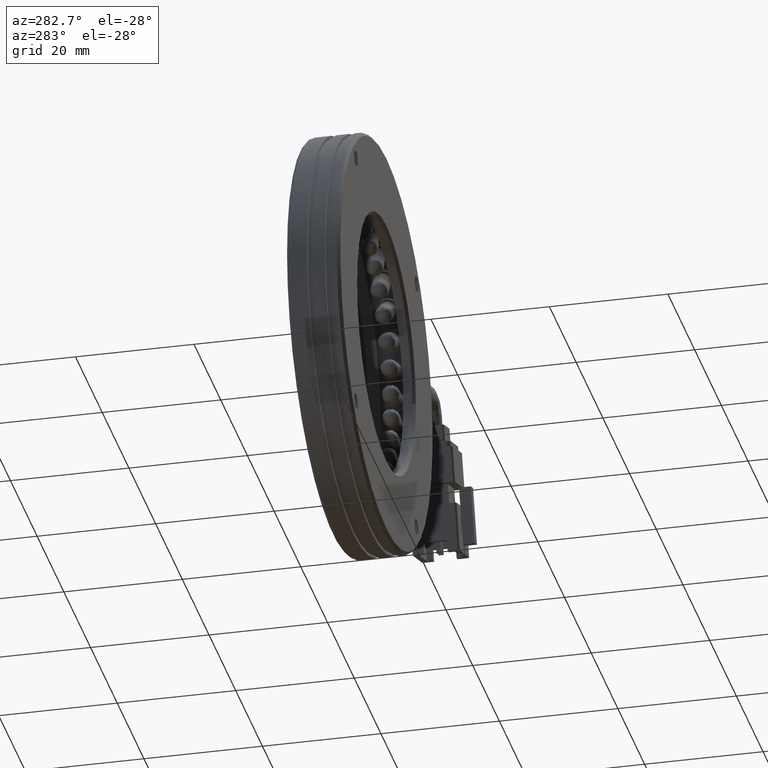
[diagram: clean part render]
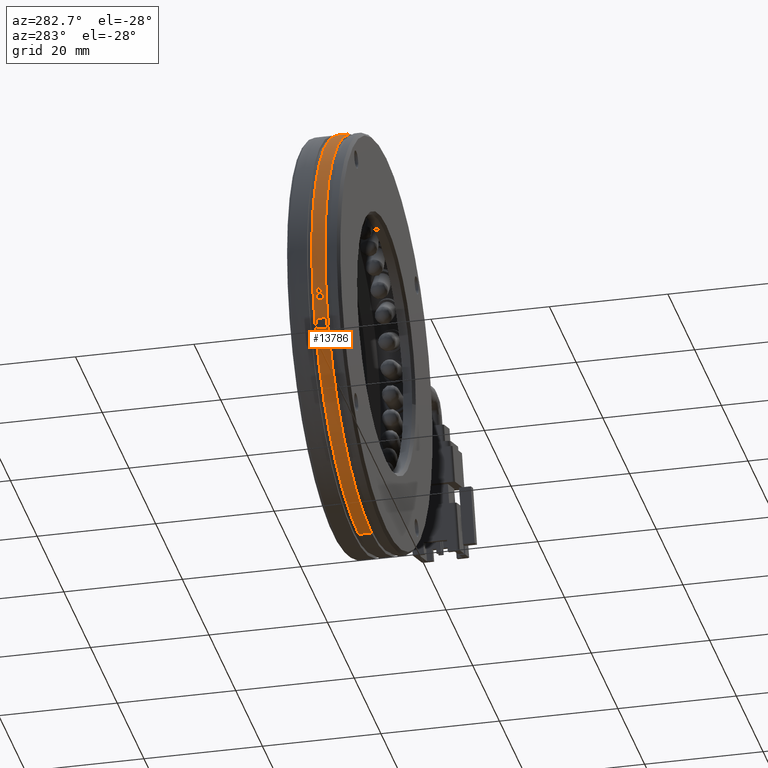
[diagram: same view with one face highlighted and labeled with its STEP entity id]
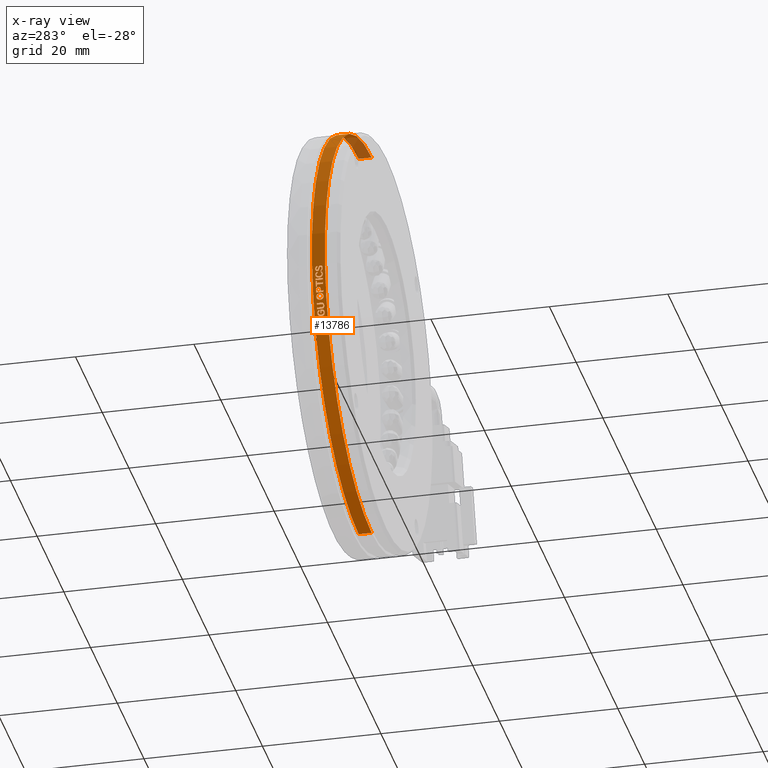
[diagram: x-ray of the same camera — body ghosted, the highlighted face saturated]
A machine part, auxiliary view. The second image highlights one B-rep face of the part: STEP entity #13786.
The next image is the same camera in x-ray: the body ghosted, the highlighted face saturated — about 5% of this face is hidden behind the body in this view.
In plain terms, the highlighted cylindrical surface (partial cylindrical patch) has radius 35 mm, axis along (-0, -1, -0).
Its self-contained STEP definition (entity closure, byte-faithful):
#142 = CARTESIAN_POINT ( 'NONE',  ( -40.39723486211963200, 8.439419805546799900, -4.663328215685306900 ) ) ;
#197 = VECTOR ( 'NONE', #20840, 1000.000000000000000 ) ;
#217 = CIRCLE ( 'NONE', #2184, 34.99999999999999300 ) ;
#252 = B_SPLINE_CURVE_WITH_KNOTS ( 'NONE', 3,
 ( #5702, #8786, #30602, #11857, #33721, #14976, #36816, #18114, #39926, #21215 ),
 .UNSPECIFIED., .F., .F.,
 ( 4, 2, 2, 2, 4 ),
 ( 2.867545654888875000E-017, 0.0002174403538692195000, 0.0004348807077384103100, 0.0006523210616076010500, 0.0008697614154767919000 ),
 .UNSPECIFIED. ) ;
#253 = CARTESIAN_POINT ( 'NONE',  ( -40.53529176790697600, 8.431466855415269600, -3.486049796518110500 ) ) ;
#273 = EDGE_CURVE ( 'NONE', #11872, #32885, #14133, .T. ) ;
#299 = VECTOR ( 'NONE', #39300, 1000.000000000000000 ) ;
#410 = CARTESIAN_POINT ( 'NONE',  ( -40.50665843673757400, 8.155241945682604400, -3.760764559234163400 ) ) ;
#555 = CARTESIAN_POINT ( 'NONE',  ( -38.85192625618644500, 7.473551317965132900, -11.25017765051628700 ) ) ;
#557 = CARTESIAN_POINT ( 'NONE',  ( -38.58840364347593500, 8.711829927737943200, -11.99857520911581000 ) ) ;
#617 = CARTESIAN_POINT ( 'NONE',  ( -40.32951506316123900, 7.515653376187645000, -5.142043744119059000 ) ) ;
#623 = CARTESIAN_POINT ( 'NONE',  ( -39.27207348800719400, 7.362210503221170700, -9.926716905154590300 ) ) ;
#700 = EDGE_CURVE ( 'NONE', #27360, #5844, #13007, .T. ) ;
#739 = CARTESIAN_POINT ( 'NONE',  ( -39.02928525543719500, 7.275475782910735500, -10.71354901682362900 ) ) ;
#741 = VERTEX_POINT ( 'NONE', #36999 ) ;
#742 = DIRECTION ( 'NONE',  ( 1.717128912325588700E-015, 1.000000000000000000, -6.800725122794042400E-015 ) ) ;
#750 = DIRECTION ( 'NONE',  ( 0.0000000000000000000, -5.898059818321145700E-015, -1.000000000000000000 ) ) ;
#954 = CARTESIAN_POINT ( 'NONE',  ( -39.27059936408246400, 7.200350038104902600, -9.931699640039335400 ) ) ;
#969 = EDGE_CURVE ( 'NONE', #5844, #741, #7006, .T. ) ;
#973 = EDGE_CURVE ( 'NONE', #37691, #30644, #23479, .T. ) ;
#1003 = CARTESIAN_POINT ( 'NONE',  ( -5.709292144904565300, 8.740899625888642900, 0.0000000000000000000 ) ) ;
#1048 = CARTESIAN_POINT ( 'NONE',  ( -39.95628834277789600, 7.641280270663054700, -7.221028418642939400 ) ) ;
#1105 = ORIENTED_EDGE ( 'NONE', *, *, #38166, .T. ) ;
#1155 = EDGE_CURVE ( 'NONE', #24310, #5081, #3605, .T. ) ;
#1200 = DIRECTION ( 'NONE',  ( -0.0000000000000000000, -1.000000000000000000, -0.0000000000000000000 ) ) ;
#1222 = CIRCLE ( 'NONE', #33924, 34.99999999999999300 ) ;
#1379 = EDGE_CURVE ( 'NONE', #31795, #6650, #11703, .T. ) ;
#1470 = CARTESIAN_POINT ( 'NONE',  ( -38.58892541590628200, 6.980985665217229300, -11.99714559153918000 ) ) ;
#1530 = CARTESIAN_POINT ( 'NONE',  ( -40.17456373751140600, 7.222675619500247300, -6.094674236400825500 ) ) ;
#1666 = CARTESIAN_POINT ( 'NONE',  ( -40.39863021250401700, 7.200350038104937200, -4.652937183306445200 ) ) ;
#1680 = CIRCLE ( 'NONE', #26649, 34.99999999999999300 ) ;
#1811 = CARTESIAN_POINT ( 'NONE',  ( -40.52638276884088200, 7.725001200895628800, -3.573541728398598000 ) ) ;
#1839 = CARTESIAN_POINT ( 'NONE',  ( -40.52961579091536500, 7.356629107872377600, -3.542370271246749100 ) ) ;
#1842 = CARTESIAN_POINT ( 'NONE',  ( -39.99953580705859900, 8.390012020451413500, -7.012982834793845700 ) ) ;
#1854 = VERTEX_POINT ( 'NONE', #1530 ) ;
#1861 = CARTESIAN_POINT ( 'NONE',  ( -39.80464579682593000, 8.119002150315049300, -7.906159537187290800 ) ) ;
#1879 = EDGE_CURVE ( 'NONE', #11168, #4517, #18408, .T. ) ;
#1922 = CARTESIAN_POINT ( 'NONE',  ( -40.53830979342927100, 7.915220361393205700, -3.457007879260136600 ) ) ;
#1974 = VECTOR ( 'NONE', #8485, 1000.000000000000000 ) ;
#2001 = CARTESIAN_POINT ( 'NONE',  ( -39.68912917594610000, 7.200350038104912400, -8.388723105685269100 ) ) ;
#2024 = VERTEX_POINT ( 'NONE', #38263 ) ;
#2059 = CARTESIAN_POINT ( 'NONE',  ( -38.74213095999537200, 7.979963971136093000, -11.56857872402954100 ) ) ;
#2079 = VECTOR ( 'NONE', #30349, 1000.000000000000000 ) ;
#2126 = VERTEX_POINT ( 'NONE', #6886 ) ;
#2127 = ORIENTED_EDGE ( 'NONE', *, *, #12707, .T. ) ;
#2160 = CARTESIAN_POINT ( 'NONE',  ( -39.57494810971164900, 7.439542963045764300, -8.838544005212281000 ) ) ;
#2176 = EDGE_CURVE ( 'NONE', #4517, #17576, #22337, .T. ) ;
#2184 = AXIS2_PLACEMENT_3D ( 'NONE', #25480, #6895, #28634 ) ;
#2187 = CARTESIAN_POINT ( 'NONE',  ( -38.82142874935018300, 7.921099948651758800, -11.33959538470946000 ) ) ;
#2214 = CARTESIAN_POINT ( 'NONE',  ( -5.709292144904565300, 8.422675619500234100, 0.0000000000000000000 ) ) ;
#2445 = CARTESIAN_POINT ( 'NONE',  ( -40.50633539089841400, 8.085411719179077700, -3.763746121645845700 ) ) ;
#2454 = CIRCLE ( 'NONE', #12429, 34.99999999999999300 ) ;
#2532 = EDGE_CURVE ( 'NONE', #12562, #19373, #30163, .T. ) ;
#2568 = VERTEX_POINT ( 'NONE', #39370 ) ;
#2578 = CARTESIAN_POINT ( 'NONE',  ( -40.54266984432840800, 8.165547170203044700, -3.411323961585782400 ) ) ;
#2705 = VERTEX_POINT ( 'NONE', #28662 ) ;
#2741 = CARTESIAN_POINT ( 'NONE',  ( -39.61509251605758000, 8.363603585705698500, -8.683434711592136400 ) ) ;
#2756 = VERTEX_POINT ( 'NONE', #25642 ) ;
#2857 = VECTOR ( 'NONE', #40315, 1000.000000000000000 ) ;
#2883 = CARTESIAN_POINT ( 'NONE',  ( -40.37654649462209700, 8.419737279391098300, -4.815234610611336800 ) ) ;
#2885 = EDGE_CURVE ( 'NONE', #10758, #11839, #16721, .T. ) ;
#2953 = LINE ( 'NONE', #11831, #34068 ) ;
#3000 = CARTESIAN_POINT ( 'NONE',  ( -39.31469554837985900, 7.389938712935268100, -9.781523189364362400 ) ) ;
#3112 = VERTEX_POINT ( 'NONE', #6073 ) ;
#3225 = CARTESIAN_POINT ( 'NONE',  ( -38.07998741557423700, 6.955602534680213700, -13.30939057495131000 ) ) ;
#3234 = ORIENTED_EDGE ( 'NONE', *, *, #5616, .T. ) ;
#3262 = CARTESIAN_POINT ( 'NONE',  ( -40.41255655515828200, 8.432226185035320400, -4.548252076466474700 ) ) ;
#3290 = CARTESIAN_POINT ( 'NONE',  ( -39.34359537937439200, -49.82318178258231700, -9.681613808231128700 ) ) ;
#3360 = CARTESIAN_POINT ( 'NONE',  ( -40.55049553052098300, 8.379288013979959300, -3.330532701057778300 ) ) ;
#3464 = CARTESIAN_POINT ( 'NONE',  ( -5.709292144904565300, 7.914768642756052400, 0.0000000000000000000 ) ) ;
#3533 = CARTESIAN_POINT ( 'NONE',  ( -40.50653738225442200, 8.110117479965365900, -3.761877708237267600 ) ) ;
#3550 = B_SPLINE_CURVE_WITH_KNOTS ( 'NONE', 3,
 ( #7797, #29556, #23370, #4830, #26537, #7929, #29683, #10987, #32835, #14095 ),
 .UNSPECIFIED., .F., .F.,
 ( 4, 2, 2, 2, 4 ),
 ( 0.0000000000000000000, 0.0001657305266161024800, 0.0003314610532322049600, 0.0004971915798483074100, 0.0006629221064644099100 ),
 .UNSPECIFIED. ) ;
#3563 = ORIENTED_EDGE ( 'NONE', *, *, #32008, .T. ) ;
#3605 = LINE ( 'NONE', #24549, #19978 ) ;
#3668 = CARTESIAN_POINT ( 'NONE',  ( -38.89248758863624300, 7.380694400632055600, -11.13003078734089400 ) ) ;
#3670 = CARTESIAN_POINT ( 'NONE',  ( -38.62383296447599400, 8.628233802523464400, -11.90100818972652300 ) ) ;
#3711 = ORIENTED_EDGE ( 'NONE', *, *, #8914, .T. ) ;
#3719 = CARTESIAN_POINT ( 'NONE',  ( -39.07117212631721500, 7.421032130401370000, -10.58231084180430800 ) ) ;
#3740 = EDGE_CURVE ( 'NONE', #10638, #12574, #15749, .T. ) ;
#3741 = CARTESIAN_POINT ( 'NONE',  ( -40.32176977797807600, 7.742102706474577500, -5.193881389633446600 ) ) ;
#3763 = FACE_BOUND ( 'NONE', #32916, .T. ) ;
#3770 = CARTESIAN_POINT ( 'NONE',  ( -40.50467462264423800, 7.389678675521230000, -3.779833531160679400 ) ) ;
#3773 = CARTESIAN_POINT ( 'NONE',  ( -38.98712138907237800, 8.407877450413048200, -10.84384488724455900 ) ) ;
#3796 = EDGE_CURVE ( 'NONE', #11839, #24476, #23537, .T. ) ;
#3817 = VERTEX_POINT ( 'NONE', #1811 ) ;
#3854 = CARTESIAN_POINT ( 'NONE',  ( -38.87337055633222600, 7.215763662919441000, -11.18702653370144900 ) ) ;
#3856 = CARTESIAN_POINT ( 'NONE',  ( -38.95554166414018500, 7.200350038104892800, -10.94061511975378300 ) ) ;
#3873 = CARTESIAN_POINT ( 'NONE',  ( -5.709292144904565300, 7.222675619500254400, 0.0000000000000000000 ) ) ;
#3937 = CARTESIAN_POINT ( 'NONE',  ( -5.709292144904565300, 7.747326782290925500, 0.0000000000000000000 ) ) ;
#3963 = DIRECTION ( 'NONE',  ( -0.0000000000000000000, -1.000000000000000000, -0.0000000000000000000 ) ) ;
#3965 = EDGE_LOOP ( 'NONE', ( #6307, #16010, #34101, #35276, #34595, #26492, #19967, #40081 ) ) ;
#4011 = DIRECTION ( 'NONE',  ( 1.493922758805898600E-015, 1.000000000000000000, -5.916712463693376000E-015 ) ) ;
#4025 = CARTESIAN_POINT ( 'NONE',  ( -5.709292144904565300, 6.951255465749324200, 0.0000000000000000000 ) ) ;
#4031 = DIRECTION ( 'NONE',  ( 0.0000000000000000000, 1.000000000000000000, 0.0000000000000000000 ) ) ;
#4051 = CARTESIAN_POINT ( 'NONE',  ( -40.03813142602209800, 7.977316565985457700, -6.821348518083844700 ) ) ;
#4103 = CARTESIAN_POINT ( 'NONE',  ( -39.19116559749901500, 7.241640923058168900, -10.19650719777262000 ) ) ;
#4107 = DIRECTION ( 'NONE',  ( -3.470918447232477800E-015, -1.000000000000000000, 1.374664541131868600E-014 ) ) ;
#4341 = B_SPLINE_CURVE_WITH_KNOTS ( 'NONE', 3,
 ( #12013, #8954, #15145, #36971, #18268, #40097, #21383, #2883, #24562, #5992 ),
 .UNSPECIFIED., .F., .F.,
 ( 4, 2, 2, 2, 4 ),
 ( 0.0000000000000000000, 0.0002269707158079890600, 0.0004539414316159781200, 0.0006809121474239672300, 0.0009078828632319562300 ),
 .UNSPECIFIED. ) ;
#4387 = EDGE_CURVE ( 'NONE', #24517, #25892, #24913, .T. ) ;
#4451 = CARTESIAN_POINT ( 'NONE',  ( -39.90603829501233000, -49.82318178258230300, -7.455370731565895200 ) ) ;
#4469 = CARTESIAN_POINT ( 'NONE',  ( -38.64148229074337600, 7.233284651996410000, -11.85204000154897300 ) ) ;
#4517 = VERTEX_POINT ( 'NONE', #39512 ) ;
#4548 = CARTESIAN_POINT ( 'NONE',  ( -40.39932456966155200, 8.266396549732789400, -4.647757563525561700 ) ) ;
#4603 = CARTESIAN_POINT ( 'NONE',  ( -38.54441143241581400, 6.951255465749302000, -12.11845359925738700 ) ) ;
#4672 = CARTESIAN_POINT ( 'NONE',  ( -40.50790360480068100, 7.208746556212954500, -3.750153935671223700 ) ) ;
#4702 = EDGE_CURVE ( 'NONE', #12562, #15447, #34644, .T. ) ;
#4706 = CARTESIAN_POINT ( 'NONE',  ( -40.40330095043401600, 8.266396549732792900, -4.618078567569925900 ) ) ;
#4812 = CARTESIAN_POINT ( 'NONE',  ( -40.40724007774034000, 8.261804106370899300, -4.588373281642451400 ) ) ;
#4824 = CARTESIAN_POINT ( 'NONE',  ( -40.54775614871338300, 7.567005895077182100, -3.358783389162881800 ) ) ;
#4830 = CARTESIAN_POINT ( 'NONE',  ( -40.56685186871253300, 7.343572252354805500, -3.154530986789815500 ) ) ;
#4845 = CARTESIAN_POINT ( 'NONE',  ( -40.41442574578961500, 8.240049483102108500, -4.533702886845627100 ) ) ;
#4942 = CARTESIAN_POINT ( 'NONE',  ( -40.41765857223748500, 8.222574024657944800, -4.508847656390699400 ) ) ;
#4947 = CARTESIAN_POINT ( 'NONE',  ( -40.32125991055812600, 7.819884921825819300, -5.197276920595964400 ) ) ;
#4956 = CARTESIAN_POINT ( 'NONE',  ( -40.54482800603794600, 7.638491446836354700, -3.389040281601700700 ) ) ;
#4963 = CARTESIAN_POINT ( 'NONE',  ( -38.64148229074336900, 7.277541098519413300, -11.85204000154898000 ) ) ;
#4967 = CARTESIAN_POINT ( 'NONE',  ( -40.02534041575920300, 8.292867158760364200, -6.885521334730223800 ) ) ;
#4988 = CARTESIAN_POINT ( 'NONE',  ( -39.81728214877578900, 7.892439817392059400, -7.851435611295894300 ) ) ;
#5020 = DIRECTION ( 'NONE',  ( -0.0000000000000000000, -1.000000000000000000, -0.0000000000000000000 ) ) ;
#5024 = CARTESIAN_POINT ( 'NONE',  ( -40.42986843329651900, 8.043140735779310500, -4.413794535538989400 ) ) ;
#5027 = CARTESIAN_POINT ( 'NONE',  ( -40.41747967230236300, 7.357941789606277500, -4.510990520821576600 ) ) ;
#5081 = VERTEX_POINT ( 'NONE', #19107 ) ;
#5144 = CIRCLE ( 'NONE', #26919, 34.99999999999999300 ) ;
#5167 = CARTESIAN_POINT ( 'NONE',  ( -40.42815536833497000, 8.100870402503609600, -4.427270152087465300 ) ) ;
#5191 = CARTESIAN_POINT ( 'NONE',  ( -38.76750754569328400, 8.200646507901360800, -11.49595500778165700 ) ) ;
#5208 = CARTESIAN_POINT ( 'NONE',  ( -38.90062003595176800, 7.914768642756036400, -11.10566309722169700 ) ) ;
#5218 = EDGE_LOOP ( 'NONE', ( #13951, #8938, #31503, #8876, #31571, #28716, #32695, #20274, #7452, #6252, #19960, #19168, #24881, #15372 ) ) ;
#5232 = B_SPLINE_CURVE_WITH_KNOTS ( 'NONE', 3,
 ( #34641, #12786, #19019, #557, #22181, #3670, #25338, #6761, #28499, #9856 ),
 .UNSPECIFIED., .F., .F.,
 ( 4, 2, 2, 2, 4 ),
 ( 0.0000000000000000000, 0.0001309404312721280000, 0.0002618808625442560000, 0.0003928212938163840000, 0.0005237617250885119900 ),
 .UNSPECIFIED. ) ;
#5236 = CARTESIAN_POINT ( 'NONE',  ( -40.42542306954605600, 8.157511798361406700, -4.448806873016264000 ) ) ;
#5271 = CARTESIAN_POINT ( 'NONE',  ( -39.55485892232459800, 7.658766965045298700, -8.915048916606013000 ) ) ;
#5308 = EDGE_CURVE ( 'NONE', #37589, #26321, #12795, .T. ) ;
#5313 = CARTESIAN_POINT ( 'NONE',  ( -40.52422693043394700, 8.439419805546807000, -3.594484090844743300 ) ) ;
#5325 = DIRECTION ( 'NONE',  ( 0.0000000000000000000, -6.938893903907230000E-015, -1.000000000000000000 ) ) ;
#5335 = CIRCLE ( 'NONE', #10115, 34.99999999999999300 ) ;
#5348 = VECTOR ( 'NONE', #37851, 1000.000000000000000 ) ;
#5352 = CARTESIAN_POINT ( 'NONE',  ( -5.709292144904565300, 8.422675619500219900, 0.0000000000000000000 ) ) ;
#5367 = CARTESIAN_POINT ( 'NONE',  ( -40.51378829440803700, 8.438027493296168300, -3.695589123808198400 ) ) ;
#5381 = CARTESIAN_POINT ( 'NONE',  ( -39.19875312196099800, -49.82318178258232400, -10.17133243317775600 ) ) ;
#5447 = CARTESIAN_POINT ( 'NONE',  ( -40.50247945919910800, 8.423739182569601500, -3.800172156765631900 ) ) ;
#5451 = CARTESIAN_POINT ( 'NONE',  ( -40.29920628825089300, -49.82318178258228900, -5.342081949570753900 ) ) ;
#5499 = CARTESIAN_POINT ( 'NONE',  ( -40.48836139321367300, 8.340766457993339600, -3.926593969139954100 ) ) ;
#5544 = EDGE_CURVE ( 'NONE', #33599, #13139, #15667, .T. ) ;
#5616 = EDGE_CURVE ( 'NONE', #2126, #30855, #37880, .T. ) ;
#5635 = CARTESIAN_POINT ( 'NONE',  ( -40.48439905091037600, 8.302053589977159500, -3.961368469579573700 ) ) ;
#5656 = B_SPLINE_CURVE_WITH_KNOTS ( 'NONE', 3,
 ( #18586, #37299, #21723, #3773, #25453, #6867, #28606, #9951 ),
 .UNSPECIFIED., .F., .F.,
 ( 4, 2, 2, 4 ),
 ( 0.0000000000000000000, 0.0001654224964580917100, 0.0003308449929161834200, 0.0006616899858323762600 ),
 .UNSPECIFIED. ) ;
#5692 = FACE_OUTER_BOUND ( 'NONE', #36633, .T. ) ;
#5702 = CARTESIAN_POINT ( 'NONE',  ( -39.41190144243923800, 7.741745386942083600, -9.441087148084673000 ) ) ;
#5737 = CARTESIAN_POINT ( 'NONE',  ( -39.85305510295727100, 8.422675619500239500, -7.694377886763031200 ) ) ;
#5811 = CARTESIAN_POINT ( 'NONE',  ( -40.47791941122564900, 8.110117479965365900, -4.017780234860235400 ) ) ;
#5840 = CARTESIAN_POINT ( 'NONE',  ( -39.67014270638468800, 8.436083765246879200, -8.465630774869783400 ) ) ;
#5844 = VERTEX_POINT ( 'NONE', #19933 ) ;
#5893 = CARTESIAN_POINT ( 'NONE',  ( -40.47791941122564900, 8.110117479965365900, -4.017780234860235400 ) ) ;
#5922 = B_SPLINE_CURVE_WITH_KNOTS ( 'NONE', 3,
 ( #32523, #21260, #27590, #8983, #30776, #12037, #33901, #15169, #36989, #18282 ),
 .UNSPECIFIED., .F., .F.,
 ( 4, 2, 2, 2, 4 ),
 ( 0.0000000000000000000, 0.0001639508761768252900, 0.0003279017523536505900, 0.0004918526285304759100, 0.0006558035047073011800 ),
 .UNSPECIFIED. ) ;
#5923 = VERTEX_POINT ( 'NONE', #23659 ) ;
#5938 = ORIENTED_EDGE ( 'NONE', *, *, #35011, .T. ) ;
#5954 = VERTEX_POINT ( 'NONE', #33260 ) ;
#5992 = CARTESIAN_POINT ( 'NONE',  ( -40.39723486211963200, 8.439419805546799900, -4.663328215685306900 ) ) ;
#6032 = CARTESIAN_POINT ( 'NONE',  ( -40.47820313024873000, 8.160864566583645900, -4.015325018201899400 ) ) ;
#6043 = CARTESIAN_POINT ( 'NONE',  ( -38.95418414168441500, 8.258607560705014400, -10.94436405347058300 ) ) ;
#6073 = CARTESIAN_POINT ( 'NONE',  ( -38.92374827998977300, 7.200350038104891900, -11.03629936393990000 ) ) ;
#6105 = CARTESIAN_POINT ( 'NONE',  ( -39.33623799906056500, 7.477897251754949800, -9.707163120419693300 ) ) ;
#6171 = CARTESIAN_POINT ( 'NONE',  ( -40.47930657884519000, 8.210079598183654100, -4.005820357863277600 ) ) ;
#6252 = ORIENTED_EDGE ( 'NONE', *, *, #34202, .T. ) ;
#6307 = ORIENTED_EDGE ( 'NONE', *, *, #21714, .T. ) ;
#6322 = CARTESIAN_POINT ( 'NONE',  ( -38.03202334669745700, 7.001512059884143800, -13.42542577771772900 ) ) ;
#6350 = CARTESIAN_POINT ( 'NONE',  ( -40.43371579231779100, 8.376161693293385100, -4.383668734466713300 ) ) ;
#6461 = B_SPLINE_CURVE_WITH_KNOTS ( 'NONE', 3,
 ( #954, #19440, #38168, #4103, #25770, #7180, #28925, #10250, #32088, #13347 ),
 .UNSPECIFIED., .F., .F.,
 ( 4, 2, 2, 2, 4 ),
 ( 0.0000000000000000000, 0.0002096298023318950400, 0.0004192596046637900700, 0.0006288894069956850800, 0.0008385192093275801400 ),
 .UNSPECIFIED. ) ;
#6462 = CARTESIAN_POINT ( 'NONE',  ( -40.56190549431917700, 8.269175613935072300, -3.208735270689636400 ) ) ;
#6532 = EDGE_CURVE ( 'NONE', #11424, #12833, #21461, .T. ) ;
#6567 = DIRECTION ( 'NONE',  ( 0.0000000000000000000, -5.947623346206197100E-015, -1.000000000000000000 ) ) ;
#6590 = CIRCLE ( 'NONE', #12656, 34.99999999999999300 ) ;
#6637 = CARTESIAN_POINT ( 'NONE',  ( -38.82021610022735600, 7.819884921825778400, -11.34313514090487000 ) ) ;
#6650 = VERTEX_POINT ( 'NONE', #5208 ) ;
#6651 = B_SPLINE_CURVE_WITH_KNOTS ( 'NONE', 3,
 ( #14096, #32837, #20329, #1842, #23509, #4967, #26668, #8066, #29829, #11120 ),
 .UNSPECIFIED., .F., .F.,
 ( 4, 2, 2, 2, 4 ),
 ( 0.0000000000000000000, 0.0001612189044592692800, 0.0003224378089185385600, 0.0004836567133778078400, 0.0006448756178370771200 ),
 .UNSPECIFIED. ) ;
#6702 = CARTESIAN_POINT ( 'NONE',  ( -40.38829758862613100, 7.204500430868729500, -4.729970650276753100 ) ) ;
#6705 = CARTESIAN_POINT ( 'NONE',  ( -39.19875312196083400, 7.669187247407189800, -10.17133243317831800 ) ) ;
#6719 = AXIS2_PLACEMENT_3D ( 'NONE', #26133, #25609, #19934 ) ;
#6758 = CARTESIAN_POINT ( 'NONE',  ( -38.92538948739746000, 7.362210503221152900, -11.03135881630345900 ) ) ;
#6761 = CARTESIAN_POINT ( 'NONE',  ( -38.63991015536225900, 8.503801807668187600, -11.85641433654923400 ) ) ;
#6848 = VECTOR ( 'NONE', #1200, 1000.000000000000000 ) ;
#6862 = CARTESIAN_POINT ( 'NONE',  ( -40.52368434593645900, 7.356629107872377600, -3.599735500384624800 ) ) ;
#6867 = CARTESIAN_POINT ( 'NONE',  ( -39.04581288166566100, 8.293256463206304800, -10.66231234355703700 ) ) ;
#6877 = VERTEX_POINT ( 'NONE', #5737 ) ;
#6886 = CARTESIAN_POINT ( 'NONE',  ( -40.39723486211963200, 8.439419805546799900, -4.663328215685306900 ) ) ;
#6895 = DIRECTION ( 'NONE',  ( 0.0000000000000000000, -1.000000000000000000, -0.0000000000000000000 ) ) ;
#6901 = CARTESIAN_POINT ( 'NONE',  ( -5.709292144904565300, 6.760202915404272900, 0.0000000000000000000 ) ) ;
#6905 = B_SPLINE_CURVE_WITH_KNOTS ( 'NONE', 3,
 ( #14323, #33058, #2059, #23725, #5191, #26897, #8282, #30068, #11340, #33186 ),
 .UNSPECIFIED., .F., .F.,
 ( 4, 2, 2, 2, 4 ),
 ( 0.0000000000000000000, 0.0002307194362509225400, 0.0004614388725018450700, 0.0006921583087527676100, 0.0009228777450036901500 ),
 .UNSPECIFIED. ) ;
#6934 = ORIENTED_EDGE ( 'NONE', *, *, #13511, .T. ) ;
#6951 = CARTESIAN_POINT ( 'NONE',  ( -38.80271836194779000, 7.318125340669702400, -11.39420224193192700 ) ) ;
#6979 = DIRECTION ( 'NONE',  ( 0.0000000000000000000, 0.0000000000000000000, 1.000000000000000000 ) ) ;
#7006 = CIRCLE ( 'NONE', #9251, 34.99999999999999300 ) ;
#7038 = DIRECTION ( 'NONE',  ( 0.0000000000000000000, 1.008617792460800900E-014, 1.000000000000000000 ) ) ;
#7124 = DIRECTION ( 'NONE',  ( 0.0000000000000000000, 5.922841582263671400E-015, 1.000000000000000000 ) ) ;
#7171 = CARTESIAN_POINT ( 'NONE',  ( -38.64148229074336900, 7.277541098519413300, -11.85204000154898000 ) ) ;
#7180 = CARTESIAN_POINT ( 'NONE',  ( -39.14431553867966300, 7.383153390591583200, -10.34898258146066600 ) ) ;
#7323 = EDGE_CURVE ( 'NONE', #23299, #33599, #5335, .T. ) ;
#7452 = ORIENTED_EDGE ( 'NONE', *, *, #3740, .T. ) ;
#7502 = CARTESIAN_POINT ( 'NONE',  ( -39.95628834277789600, 7.641280270663054700, -7.221028418642939400 ) ) ;
#7632 = EDGE_CURVE ( 'NONE', #23512, #36058, #27618, .T. ) ;
#7797 = CARTESIAN_POINT ( 'NONE',  ( -40.57159029504670400, 7.557559340430498400, -3.101639516545390500 ) ) ;
#7820 = DIRECTION ( 'NONE',  ( 0.0000000000000000000, -1.000000000000000000, -0.0000000000000000000 ) ) ;
#7853 = ORIENTED_EDGE ( 'NONE', *, *, #20726, .T. ) ;
#7929 = CARTESIAN_POINT ( 'NONE',  ( -40.55444964358938600, 7.241605815432524900, -3.288966588245130700 ) ) ;
#8006 = CARTESIAN_POINT ( 'NONE',  ( -5.709292144904565300, 8.422675619500260800, 0.0000000000000000000 ) ) ;
#8042 = AXIS2_PLACEMENT_3D ( 'NONE', #19205, #742, #22370 ) ;
#8060 = CARTESIAN_POINT ( 'NONE',  ( -40.53668835988683100, 7.701537086198607400, -3.471933231849497300 ) ) ;
#8066 = CARTESIAN_POINT ( 'NONE',  ( -40.03705161495266700, 8.140099605349883300, -6.826798934873108800 ) ) ;
#8072 = CARTESIAN_POINT ( 'NONE',  ( -39.27059936408246400, 7.200350038104902600, -9.931699640039335400 ) ) ;
#8106 = CARTESIAN_POINT ( 'NONE',  ( -40.36264144216514900, 7.599841453528107100, -4.913809292064947900 ) ) ;
#8161 = CARTESIAN_POINT ( 'NONE',  ( -40.50653738225442200, 8.110117479965365900, -3.761877708237267600 ) ) ;
#8282 = CARTESIAN_POINT ( 'NONE',  ( -38.82248348599115700, 8.365263761825456600, -11.33674629702095200 ) ) ;
#8299 = EDGE_CURVE ( 'NONE', #36223, #11424, #3550, .T. ) ;
#8314 = VERTEX_POINT ( 'NONE', #29827 ) ;
#8340 = ORIENTED_EDGE ( 'NONE', *, *, #16754, .T. ) ;
#8348 = VERTEX_POINT ( 'NONE', #23767 ) ;
#8375 = CARTESIAN_POINT ( 'NONE',  ( -39.55129533759086500, 7.814303526476964000, -8.928539628976865900 ) ) ;
#8464 = DIRECTION ( 'NONE',  ( 0.0000000000000000000, 0.0000000000000000000, -1.000000000000000000 ) ) ;
#8480 = VERTEX_POINT ( 'NONE', #30653 ) ;
#8485 = DIRECTION ( 'NONE',  ( -0.0000000000000000000, -1.000000000000000000, -0.0000000000000000000 ) ) ;
#8497 = B_SPLINE_CURVE_WITH_KNOTS ( 'NONE', 3,
 ( #40219, #9082, #21510, #3000, #24674, #6105, #27827, #9202, #31023, #12275 ),
 .UNSPECIFIED., .F., .F.,
 ( 4, 2, 2, 2, 4 ),
 ( 0.0000000000000000000, 0.0001159476062002444100, 0.0002318952124004888300, 0.0003478428186007332100, 0.0004637904248009776500 ),
 .UNSPECIFIED. ) ;
#8515 = ORIENTED_EDGE ( 'NONE', *, *, #1379, .T. ) ;
#8533 = CARTESIAN_POINT ( 'NONE',  ( -40.37389685762609300, 8.195998025642843700, -4.833941566406670300 ) ) ;
#8575 = VERTEX_POINT ( 'NONE', #15569 ) ;
#8667 = EDGE_CURVE ( 'NONE', #19214, #19466, #29999, .T. ) ;
#8746 = B_SPLINE_CURVE_WITH_KNOTS ( 'NONE', 3,
 ( #11327, #26742, #36282, #17563, #39388, #21231, #2741, #24410, #5840, #27563 ),
 .UNSPECIFIED., .F., .F.,
 ( 4, 2, 2, 2, 4 ),
 ( 0.0000000000000000000, 0.0002323634499704908500, 0.0004647268999409817000, 0.0006970903499114725500, 0.0009294537998819634100 ),
 .UNSPECIFIED. ) ;
#8749 = B_SPLINE_CURVE_WITH_KNOTS ( 'NONE', 3,
 ( #33152, #11304, #17543, #39368, #20651, #2160, #23824, #5271, #26991, #8375 ),
 .UNSPECIFIED., .F., .F.,
 ( 4, 2, 2, 2, 4 ),
 ( 0.0000000000000000000, 0.0002307864841859867600, 0.0004615729683719735300, 0.0006923594525579603200, 0.0009231459367439470600 ),
 .UNSPECIFIED. ) ;
#8786 = CARTESIAN_POINT ( 'NONE',  ( -39.41280069777948800, 7.668752499682034900, -9.437877003859155100 ) ) ;
#8876 = ORIENTED_EDGE ( 'NONE', *, *, #19213, .T. ) ;
#8914 = EDGE_CURVE ( 'NONE', #8314, #23512, #6590, .T. ) ;
#8926 = CARTESIAN_POINT ( 'NONE',  ( -40.54623750038824400, 8.065466317174685400, -3.374498229225254300 ) ) ;
#8938 = ORIENTED_EDGE ( 'NONE', *, *, #8299, .T. ) ;
#8954 = CARTESIAN_POINT ( 'NONE',  ( -40.32176732840903100, 7.896557920236519500, -5.193897702869572100 ) ) ;
#8983 = CARTESIAN_POINT ( 'NONE',  ( -40.50415660005546700, 7.779498754954892600, -3.784193629749861700 ) ) ;
#9082 = CARTESIAN_POINT ( 'NONE',  ( -39.28312182066952800, 7.360562549649730000, -9.889361878624193000 ) ) ;
#9139 = CARTESIAN_POINT ( 'NONE',  ( -38.91879959256319700, 8.271977945081571800, -11.05118161482769800 ) ) ;
#9143 = EDGE_CURVE ( 'NONE', #22783, #24310, #6461, .T. ) ;
#9202 = CARTESIAN_POINT ( 'NONE',  ( -39.34351962650099200, 7.591435000567694900, -9.681879432709637400 ) ) ;
#9250 = VERTEX_POINT ( 'NONE', #10781 ) ;
#9251 = AXIS2_PLACEMENT_3D ( 'NONE', #28973, #29049, #28997 ) ;
#9278 = CARTESIAN_POINT ( 'NONE',  ( -38.92538948739746000, 7.362210503221152900, -11.03135881630345900 ) ) ;
#9303 = CARTESIAN_POINT ( 'NONE',  ( -38.64148229074350400, -49.82318178258233100, -11.85204000154861200 ) ) ;
#9396 = EDGE_CURVE ( 'NONE', #32885, #8575, #8749, .T. ) ;
#9410 = CARTESIAN_POINT ( 'NONE',  ( -37.99907053574004600, 7.103584130537372600, -13.50445773701614600 ) ) ;
#9444 = CARTESIAN_POINT ( 'NONE',  ( -40.44973167136441100, 8.258070460879587000, -4.254718912903016700 ) ) ;
#9463 = B_SPLINE_CURVE_WITH_KNOTS ( 'NONE', 3,
 ( #36016, #1922, #29928, #11202, #33055, #14319, #36162, #17441 ),
 .UNSPECIFIED., .F., .F.,
 ( 4, 2, 2, 4 ),
 ( 0.0000000000000000000, 0.0003257335998721412500, 0.0004886003998082110100, 0.0006514671997442807700 ),
 .UNSPECIFIED. ) ;
#9545 = CARTESIAN_POINT ( 'NONE',  ( -40.56792547127482600, 8.119658643845561100, -3.142574103923013500 ) ) ;
#9572 = CARTESIAN_POINT ( 'NONE',  ( -40.52014063538042900, 8.266396549732798200, -3.634124534166857300 ) ) ;
#9681 = EDGE_LOOP ( 'NONE', ( #13485, #20691, #3234, #33951, #26187, #19410, #24738, #33157, #33509, #39024 ) ) ;
#9792 = CARTESIAN_POINT ( 'NONE',  ( -39.19956218354241200, 7.593185600686675600, -10.16867133117876400 ) ) ;
#9856 = CARTESIAN_POINT ( 'NONE',  ( -38.64148229074350400, 8.414617254833320500, -11.85204000154861200 ) ) ;
#9866 = VERTEX_POINT ( 'NONE', #14478 ) ;
#9879 = CARTESIAN_POINT ( 'NONE',  ( -40.29920628825089300, 8.422675619500253700, -5.342081949570753900 ) ) ;
#9882 = CARTESIAN_POINT ( 'NONE',  ( -39.12517057512438600, 7.730582596244414800, -10.41052682320971100 ) ) ;
#9893 = VERTEX_POINT ( 'NONE', #39427 ) ;
#9951 = CARTESIAN_POINT ( 'NONE',  ( -39.07514672741475400, 8.087791898569992800, -10.56975628757748500 ) ) ;
#9966 = AXIS2_PLACEMENT_3D ( 'NONE', #5352, #27062, #8464 ) ;
#9989 = DIRECTION ( 'NONE',  ( 0.0000000000000000000, 0.0000000000000000000, -1.000000000000000000 ) ) ;
#10026 = CARTESIAN_POINT ( 'NONE',  ( -38.75693532307644100, 7.512014558911683800, -11.52622120729645200 ) ) ;
#10052 = ORIENTED_EDGE ( 'NONE', *, *, #13310, .T. ) ;
#10074 = AXIS2_PLACEMENT_3D ( 'NONE', #4025, #25702, #7124 ) ;
#10115 = AXIS2_PLACEMENT_3D ( 'NONE', #17159, #38980, #20255 ) ;
#10213 = CARTESIAN_POINT ( 'NONE',  ( -40.03736072203696500, 7.923429256256850000, -6.825241624387523100 ) ) ;
#10250 = CARTESIAN_POINT ( 'NONE',  ( -39.12577076006169100, 7.588645659309857000, -10.40861299272877900 ) ) ;
#10287 = CARTESIAN_POINT ( 'NONE',  ( -40.47489217857849300, 7.423605852058430300, -4.043890985005838900 ) ) ;
#10320 = CARTESIAN_POINT ( 'NONE',  ( -40.52368434593645900, 7.356629107872377600, -3.599735500384624800 ) ) ;
#10512 = CARTESIAN_POINT ( 'NONE',  ( -5.709292144904560800, -49.82318178258231000, 34.99999999999999300 ) ) ;
#10638 = VERTEX_POINT ( 'NONE', #5811 ) ;
#10758 = VERTEX_POINT ( 'NONE', #21895 ) ;
#10770 = AXIS2_PLACEMENT_3D ( 'NONE', #31366, #31259, #31226 ) ;
#10781 = CARTESIAN_POINT ( 'NONE',  ( -40.45697096470810500, 7.630117479965371700, -4.195094353620149300 ) ) ;
#10898 = EDGE_CURVE ( 'NONE', #39028, #9893, #21792, .T. ) ;
#10962 = FACE_BOUND ( 'NONE', #3965, .T. ) ;
#10963 = CARTESIAN_POINT ( 'NONE',  ( -40.56877179554821600, 8.065466317174681900, -3.133157909579497700 ) ) ;
#10987 = CARTESIAN_POINT ( 'NONE',  ( -40.53868788079729100, 7.203952927624691900, -3.451987048636852200 ) ) ;
#11013 = CARTESIAN_POINT ( 'NONE',  ( -39.70784408515407200, 8.434397294743654100, -8.312915434252305500 ) ) ;
#11058 = DIRECTION ( 'NONE',  ( 0.0000000000000000000, 0.0000000000000000000, -1.000000000000000000 ) ) ;
#11110 = CARTESIAN_POINT ( 'NONE',  ( -40.52638276884088200, 7.725001200895628800, -3.573541728398598000 ) ) ;
#11120 = CARTESIAN_POINT ( 'NONE',  ( -40.03785616239567000, 8.031977945081628400, -6.822733506228666500 ) ) ;
#11157 = CARTESIAN_POINT ( 'NONE',  ( -40.37356231429648500, 7.460378094994862200, -4.836244474339715700 ) ) ;
#11168 = VERTEX_POINT ( 'NONE', #7502 ) ;
#11202 = CARTESIAN_POINT ( 'NONE',  ( -40.56133783458570000, 7.797041341670899700, -3.215118167856846600 ) ) ;
#11304 = CARTESIAN_POINT ( 'NONE',  ( -39.67052613917384500, 7.205244149363532600, -8.464077620292501400 ) ) ;
#11327 = CARTESIAN_POINT ( 'NONE',  ( -39.55129533759086500, 7.814303526476964000, -8.928539628976865900 ) ) ;
#11329 = CARTESIAN_POINT ( 'NONE',  ( -38.91879959256319700, 8.271977945081571800, -11.05118161482769800 ) ) ;
#11340 = CARTESIAN_POINT ( 'NONE',  ( -38.89403620348128500, 8.435338422186063700, -11.12559718257487900 ) ) ;
#11424 = VERTEX_POINT ( 'NONE', #27445 ) ;
#11462 = EDGE_CURVE ( 'NONE', #26378, #2126, #4341, .T. ) ;
#11521 = EDGE_CURVE ( 'NONE', #17785, #8314, #22668, .T. ) ;
#11576 = CARTESIAN_POINT ( 'NONE',  ( -40.36311312112147900, 8.061564447589775600, -4.910517334215262200 ) ) ;
#11631 = EDGE_CURVE ( 'NONE', #17576, #22954, #1680, .T. ) ;
#11703 = LINE ( 'NONE', #18381, #27334 ) ;
#11718 = CARTESIAN_POINT ( 'NONE',  ( -40.50901151699680700, 8.016370683659625100, -3.738936593817477200 ) ) ;
#11831 = CARTESIAN_POINT ( 'NONE',  ( -40.06103514893978700, -49.82318178258231000, -6.705054256657208000 ) ) ;
#11839 = VERTEX_POINT ( 'NONE', #20655 ) ;
#11857 = CARTESIAN_POINT ( 'NONE',  ( -39.40376367187165800, 7.453320110576133800, -9.470101608405558500 ) ) ;
#11872 = VERTEX_POINT ( 'NONE', #23829 ) ;
#11911 = FACE_BOUND ( 'NONE', #9681, .T. ) ;
#11964 = CARTESIAN_POINT ( 'NONE',  ( -40.06103514893978700, 8.422675619500246600, -6.705054256657208000 ) ) ;
#11981 = CARTESIAN_POINT ( 'NONE',  ( -40.53025917087692400, 8.264488490772569300, -3.535975862640079000 ) ) ;
#12013 = CARTESIAN_POINT ( 'NONE',  ( -40.32125991055812600, 7.819884921825819300, -5.197276920595964400 ) ) ;
#12037 = CARTESIAN_POINT ( 'NONE',  ( -40.48829545299329900, 7.860048198561840700, -3.927220194551620700 ) ) ;
#12190 = VERTEX_POINT ( 'NONE', #37976 ) ;
#12275 = CARTESIAN_POINT ( 'NONE',  ( -39.34359537937439200, 7.669187247407199600, -9.681613808231128700 ) ) ;
#12287 = CARTESIAN_POINT ( 'NONE',  ( -37.98725723676815800, -49.82318178258234600, -13.53266306121728500 ) ) ;
#12373 = ORIENTED_EDGE ( 'NONE', *, *, #39994, .T. ) ;
#12374 = CARTESIAN_POINT ( 'NONE',  ( -39.07672688670965800, 7.914768642756032000, -10.56476685740760700 ) ) ;
#12429 = AXIS2_PLACEMENT_3D ( 'NONE', #3464, #25131, #6567 ) ;
#12478 = CARTESIAN_POINT ( 'NONE',  ( -37.98725723676798800, 7.232952337373597600, -13.53266306121765800 ) ) ;
#12484 = CARTESIAN_POINT ( 'NONE',  ( -40.52986277264578500, 8.437876427525861100, -3.539897264444131300 ) ) ;
#12505 = CARTESIAN_POINT ( 'NONE',  ( -40.45864239882633500, 8.100388977702991200, -4.181244878212571500 ) ) ;
#12562 = VERTEX_POINT ( 'NONE', #33918 ) ;
#12574 = VERTEX_POINT ( 'NONE', #30786 ) ;
#12656 = AXIS2_PLACEMENT_3D ( 'NONE', #36965, #18264, #40095 ) ;
#12707 = EDGE_CURVE ( 'NONE', #6650, #21822, #2454, .T. ) ;
#12786 = CARTESIAN_POINT ( 'NONE',  ( -38.54433968150495800, 8.740899625888619800, -12.11864725176642900 ) ) ;
#12795 = B_SPLINE_CURVE_WITH_KNOTS ( 'NONE', 3,
 ( #5024, #5167, #5236, #4942, #4845, #4812, #4706, #4548 ),
 .UNSPECIFIED., .F., .F.,
 ( 4, 2, 2, 4 ),
 ( 0.0000000000000000000, 0.0001754701520313476900, 0.0002632052280470216100, 0.0003509403040626955400 ),
 .UNSPECIFIED. ) ;
#12801 = ORIENTED_EDGE ( 'NONE', *, *, #4387, .T. ) ;
#12833 = VERTEX_POINT ( 'NONE', #10287 ) ;
#12867 = CARTESIAN_POINT ( 'NONE',  ( -39.20813479704034400, 7.482108126762488700, -10.14041591830397900 ) ) ;
#12909 = CARTESIAN_POINT ( 'NONE',  ( -39.95628834277789600, 8.422675619500243000, -7.221028418642943900 ) ) ;
#12986 = VERTEX_POINT ( 'NONE', #35754 ) ;
#12993 = VERTEX_POINT ( 'NONE', #1666 ) ;
#12997 = EDGE_CURVE ( 'NONE', #21822, #18944, #35932, .T. ) ;
#13007 = LINE ( 'NONE', #37623, #28665 ) ;
#13056 = EDGE_CURVE ( 'NONE', #21323, #36223, #9463, .T. ) ;
#13097 = CARTESIAN_POINT ( 'NONE',  ( -38.73897972220602500, 7.745321287335825000, -11.57755355022191400 ) ) ;
#13108 = VERTEX_POINT ( 'NONE', #20553 ) ;
#13139 = VERTEX_POINT ( 'NONE', #33327 ) ;
#13191 = CARTESIAN_POINT ( 'NONE',  ( -40.13005702861367800, 7.222675619500247300, -6.341210043865213000 ) ) ;
#13213 = EDGE_CURVE ( 'NONE', #15447, #21247, #25173, .T. ) ;
#13296 = CARTESIAN_POINT ( 'NONE',  ( -40.02627385416310100, 7.768092206614902300, -6.880868770337049700 ) ) ;
#13310 = EDGE_CURVE ( 'NONE', #38848, #17785, #8497, .T. ) ;
#13347 = CARTESIAN_POINT ( 'NONE',  ( -39.12517057512438600, 7.730582596244414800, -10.41052682320971100 ) ) ;
#13467 = CARTESIAN_POINT ( 'NONE',  ( -38.11332303925215100, 8.740899625888612700, -13.22795455836488900 ) ) ;
#13485 = ORIENTED_EDGE ( 'NONE', *, *, #23106, .T. ) ;
#13511 = EDGE_CURVE ( 'NONE', #21247, #19373, #33483, .T. ) ;
#13614 = CARTESIAN_POINT ( 'NONE',  ( -38.09502467116696800, 8.740899625888618000, -13.27277939368863700 ) ) ;
#13625 = CARTESIAN_POINT ( 'NONE',  ( -5.709292144904565300, 8.043140735779310500, 0.0000000000000000000 ) ) ;
#13786 = ADVANCED_FACE ( 'NONE', ( #5692, #20152, #37771, #29519, #11911, #3763, #35822, #27536, #19184, #10962 ), #15313, .T. ) ;
#13799 = ORIENTED_EDGE ( 'NONE', *, *, #2532, .F. ) ;
#13882 = CARTESIAN_POINT ( 'NONE',  ( -38.07661727134790700, 8.731792157798407700, -13.31758749612678200 ) ) ;
#13912 = CARTESIAN_POINT ( 'NONE',  ( -39.07672688670965800, -49.82318178258231000, -10.56476685740760700 ) ) ;
#13927 = CARTESIAN_POINT ( 'NONE',  ( -40.48135364959436800, 7.348449150275094200, -3.988341288488044700 ) ) ;
#13951 = ORIENTED_EDGE ( 'NONE', *, *, #13056, .T. ) ;
#13995 = VECTOR ( 'NONE', #3963, 1000.000000000000000 ) ;
#14007 = CARTESIAN_POINT ( 'NONE',  ( -38.04358735047899400, 8.691234896120848300, -13.39758284604538100 ) ) ;
#14095 = CARTESIAN_POINT ( 'NONE',  ( -40.52745269589782900, 7.200350038104947900, -3.563101997593711700 ) ) ;
#14096 = CARTESIAN_POINT ( 'NONE',  ( -39.95628834277789600, 8.422675619500243000, -7.221028418642943900 ) ) ;
#14133 = B_SPLINE_CURVE_WITH_KNOTS ( 'NONE', 3,
 ( #25419, #24867, #24330, #24053, #23917, #22122, #21990, #21706, #21436, #21290 ),
 .UNSPECIFIED., .F., .F.,
 ( 4, 2, 2, 2, 4 ),
 ( 0.0000000000000000000, 0.0002295613014807425900, 0.0004591226029614851700, 0.0006886839044422277600, 0.0009182452059229703400 ),
 .UNSPECIFIED. ) ;
#14147 = EDGE_CURVE ( 'NONE', #30855, #37589, #16697, .T. ) ;
#14151 = VECTOR ( 'NONE', #35496, 1000.000000000000000 ) ;
#14153 = CARTESIAN_POINT ( 'NONE',  ( -38.02903153273748400, 8.659584294229977900, -13.43262008700770200 ) ) ;
#14228 = CARTESIAN_POINT ( 'NONE',  ( -40.54280727806384700, 7.409304544312266900, -3.409813867932107700 ) ) ;
#14238 = EDGE_CURVE ( 'NONE', #17959, #9250, #37619, .T. ) ;
#14239 = B_SPLINE_CURVE_WITH_KNOTS ( 'NONE', 3,
 ( #9278, #27911, #34211, #15469, #37298, #18585 ),
 .UNSPECIFIED., .F., .F.,
 ( 4, 2, 4 ),
 ( 0.0000000000000000000, 0.0001705426068515316800, 0.0003410852137030633600 ),
 .UNSPECIFIED. ) ;
#14275 = CARTESIAN_POINT ( 'NONE',  ( -40.39212249108789600, 7.377078083945570500, -4.701440933182223800 ) ) ;
#14295 = CARTESIAN_POINT ( 'NONE',  ( -40.44498284188893000, 7.491258514816630400, -4.293757001972010400 ) ) ;
#14319 = CARTESIAN_POINT ( 'NONE',  ( -40.57036441822204900, 7.666607211403246000, -3.115523629871859600 ) ) ;
#14323 = CARTESIAN_POINT ( 'NONE',  ( -38.73806386218188200, 7.825466317174605300, -11.58016575218082900 ) ) ;
#14353 = CARTESIAN_POINT ( 'NONE',  ( -40.17456373751147000, 8.255233759035112600, -6.094674236400435600 ) ) ;
#14423 = CARTESIAN_POINT ( 'NONE',  ( -37.98725723676800900, 8.349366651708725900, -13.53266306121766300 ) ) ;
#14453 = CARTESIAN_POINT ( 'NONE',  ( -39.07514672741475400, 8.087791898569992800, -10.56975628757748500 ) ) ;
#14478 = CARTESIAN_POINT ( 'NONE',  ( -37.98725723676815800, 7.277541098519406200, -13.53266306121728500 ) ) ;
#14576 = CARTESIAN_POINT ( 'NONE',  ( -40.39248641665467000, 8.264424269558633200, -4.698796316363246500 ) ) ;
#14717 = CARTESIAN_POINT ( 'NONE',  ( -40.35896808852523800, 7.910801860684991900, -4.939638056258899300 ) ) ;
#14780 = B_SPLINE_CURVE_WITH_KNOTS ( 'NONE', 3,
 ( #34830, #37916, #3854, #25534, #6951, #28687, #10026, #31866, #13097, #34947 ),
 .UNSPECIFIED., .F., .F.,
 ( 4, 2, 2, 2, 4 ),
 ( 0.0000000000000000000, 0.0002382280200220014700, 0.0004764560400440029400, 0.0007146840600660044100, 0.0009529120800880058800 ),
 .UNSPECIFIED. ) ;
#14850 = CARTESIAN_POINT ( 'NONE',  ( -40.51741338937720400, 7.956999073205248700, -3.660104173912237100 ) ) ;
#14921 = CARTESIAN_POINT ( 'NONE',  ( -39.41190144243923800, 8.422675619500227000, -9.441087148084673000 ) ) ;
#14976 = CARTESIAN_POINT ( 'NONE',  ( -39.36957160098667400, 7.275160774851216600, -9.591031925942845100 ) ) ;
#15085 = CARTESIAN_POINT ( 'NONE',  ( -37.98725723676801600, 8.445809192850616000, -13.53266306121766700 ) ) ;
#15133 = LINE ( 'NONE', #32404, #14151 ) ;
#15145 = CARTESIAN_POINT ( 'NONE',  ( -40.32320041169474900, 7.971884762606924500, -5.184377081520178600 ) ) ;
#15169 = CARTESIAN_POINT ( 'NONE',  ( -40.47789667945412600, 7.998376959436629200, -4.018054486082689000 ) ) ;
#15172 = EDGE_CURVE ( 'NONE', #39355, #28963, #38985, .T. ) ;
#15229 = CARTESIAN_POINT ( 'NONE',  ( -37.99566515418590700, 8.543534753677940700, -13.51271489756357100 ) ) ;
#15303 = CARTESIAN_POINT ( 'NONE',  ( -40.46010998240894500, 8.043140735779310500, -4.169011828309823600 ) ) ;
#15313 = CYLINDRICAL_SURFACE ( 'NONE', #28701, 34.99999999999999300 ) ;
#15318 = B_SPLINE_CURVE_WITH_KNOTS ( 'NONE', 3,
 ( #17692, #2445, #30468, #11718, #33586, #14850, #36682, #17970 ),
 .UNSPECIFIED., .F., .F.,
 ( 4, 2, 2, 4 ),
 ( 0.0000000000000000000, 7.356106992090457900E-005, 0.0001471221398418091600, 0.0002942442796836240600 ),
 .UNSPECIFIED. ) ;
#15322 = AXIS2_PLACEMENT_3D ( 'NONE', #8006, #29758, #11058 ) ;
#15372 = ORIENTED_EDGE ( 'NONE', *, *, #35363, .T. ) ;
#15444 = AXIS2_PLACEMENT_3D ( 'NONE', #28840, #28866, #28782 ) ;
#15447 = VERTEX_POINT ( 'NONE', #22607 ) ;
#15469 = CARTESIAN_POINT ( 'NONE',  ( -38.99093664184780300, 7.438988927493652700, -10.83209744575821500 ) ) ;
#15569 = CARTESIAN_POINT ( 'NONE',  ( -39.55129533759086500, 7.814303526476964000, -8.928539628976865900 ) ) ;
#15667 = B_SPLINE_CURVE_WITH_KNOTS ( 'NONE', 3,
 ( #8926, #27540, #2578, #30724, #11981, #33845 ),
 .UNSPECIFIED., .F., .F.,
 ( 4, 2, 4 ),
 ( 0.0000000000000000000, 0.0001571084569936048600, 0.0003142169139872097300 ),
 .UNSPECIFIED. ) ;
#15749 = B_SPLINE_CURVE_WITH_KNOTS ( 'NONE', 3,
 ( #5893, #6032, #6171, #5635, #5499, #5447, #5367, #5313 ),
 .UNSPECIFIED., .F., .F.,
 ( 4, 2, 2, 4 ),
 ( 0.0000000000000000000, 0.0001499525500138736800, 0.0002999051000277473700, 0.0005998102000554945100 ),
 .UNSPECIFIED. ) ;
#15791 = CARTESIAN_POINT ( 'NONE',  ( -40.51514803059384200, 8.259676748573618000, -3.681524417296842900 ) ) ;
#15919 = CARTESIAN_POINT ( 'NONE',  ( -38.82251785292515200, 7.715908794711608300, -11.33641923429391000 ) ) ;
#15997 = CARTESIAN_POINT ( 'NONE',  ( -40.35779602570710300, 7.277215972932817000, -4.948374904593439500 ) ) ;
#16003 = CARTESIAN_POINT ( 'NONE',  ( -39.22995528470801900, 7.395820149750735900, -10.06808778096659100 ) ) ;
#16010 = ORIENTED_EDGE ( 'NONE', *, *, #8667, .T. ) ;
#16023 = ORIENTED_EDGE ( 'NONE', *, *, #35892, .T. ) ;
#16065 = LINE ( 'NONE', #12287, #39961 ) ;
#16296 = B_SPLINE_CURVE_WITH_KNOTS ( 'NONE', 3,
 ( #20321, #4824, #23504, #4956, #26662, #8060, #29823, #11110 ),
 .UNSPECIFIED., .F., .F.,
 ( 4, 2, 2, 4 ),
 ( 0.0000000000000000000, 7.768946172601158600E-005, 0.0001553789234520231700, 0.0003107578469040457500 ),
 .UNSPECIFIED. ) ;
#16365 = CARTESIAN_POINT ( 'NONE',  ( -40.26084559011923100, -49.82318178258228900, -5.584814636357588600 ) ) ;
#16432 = CARTESIAN_POINT ( 'NONE',  ( -40.00031996058128700, 7.669630792349080300, -7.009154498256447300 ) ) ;
#16540 = B_SPLINE_CURVE_WITH_KNOTS ( 'NONE', 3,
 ( #11329, #30056, #36284, #17565, #39391, #20678, #2187, #23847 ),
 .UNSPECIFIED., .F., .F.,
 ( 4, 2, 2, 4 ),
 ( 0.0000000000000000000, 0.0001510910873256221600, 0.0003021821746512443300, 0.0006043643493024785700 ),
 .UNSPECIFIED. ) ;
#16550 = CARTESIAN_POINT ( 'NONE',  ( -40.40624769913624400, 7.362210503221201700, -4.595788862390398000 ) ) ;
#16697 = CIRCLE ( 'NONE', #22924, 34.99999999999999300 ) ;
#16721 = B_SPLINE_CURVE_WITH_KNOTS ( 'NONE', 3,
 ( #14423, #15085, #15229, #14153, #14007, #13882, #13614, #13467 ),
 .UNSPECIFIED., .F., .F.,
 ( 4, 2, 2, 4 ),
 ( 0.0000000000000000000, 0.0002863143864298278300, 0.0004294715796447420400, 0.0005726287728596562000 ),
 .UNSPECIFIED. ) ;
#16740 = DIRECTION ( 'NONE',  ( 0.0000000000000000000, 0.0000000000000000000, 1.000000000000000000 ) ) ;
#16754 = EDGE_CURVE ( 'NONE', #18944, #3112, #36910, .T. ) ;
#16803 = ORIENTED_EDGE ( 'NONE', *, *, #273, .T. ) ;
#16816 = CARTESIAN_POINT ( 'NONE',  ( -39.68912917594610000, 8.439419805546771500, -8.388723105685278000 ) ) ;
#16848 = CARTESIAN_POINT ( 'NONE',  ( -38.63145249990682800, 7.105419689711491000, -11.87987861108246600 ) ) ;
#16864 = VERTEX_POINT ( 'NONE', #26065 ) ;
#16985 = B_SPLINE_CURVE_WITH_KNOTS ( 'NONE', 3,
 ( #39087, #17273, #26698, #8106, #29872, #11157, #33008, #14275, #36104, #17391 ),
 .UNSPECIFIED., .F., .F.,
 ( 4, 2, 2, 2, 4 ),
 ( 0.0000000000000000000, 0.0001582595246546447100, 0.0003165190493092894200, 0.0004747785739639341300, 0.0006330380986185788400 ),
 .UNSPECIFIED. ) ;
#17111 = EDGE_CURVE ( 'NONE', #36058, #22783, #252, .T. ) ;
#17159 = CARTESIAN_POINT ( 'NONE',  ( -5.709292144904565300, 8.065466317174681900, 0.0000000000000000000 ) ) ;
#17209 = CARTESIAN_POINT ( 'NONE',  ( -40.57159029504670400, 7.557559340430498400, -3.101639516545390500 ) ) ;
#17263 = CARTESIAN_POINT ( 'NONE',  ( -39.75948863295361900, 8.358832402196092900, -8.098724075592878400 ) ) ;
#17273 = CARTESIAN_POINT ( 'NONE',  ( -40.35859765001420400, 7.755539012862583600, -4.942229227585366800 ) ) ;
#17354 = CARTESIAN_POINT ( 'NONE',  ( -40.54717339449237600, 7.482949760172674700, -3.364845721215324700 ) ) ;
#17391 = CARTESIAN_POINT ( 'NONE',  ( -40.40624769913624400, 7.362210503221201700, -4.595788862390398000 ) ) ;
#17416 = CARTESIAN_POINT ( 'NONE',  ( -40.45697096470810500, 7.630117479965371700, -4.195094353620149300 ) ) ;
#17420 = EDGE_CURVE ( 'NONE', #9893, #31795, #5144, .T. ) ;
#17441 = CARTESIAN_POINT ( 'NONE',  ( -40.57159029504670400, 7.557559340430498400, -3.101639516545390500 ) ) ;
#17543 = CARTESIAN_POINT ( 'NONE',  ( -39.65211303703257800, 7.218804510002231100, -8.537573344960854600 ) ) ;
#17563 = CARTESIAN_POINT ( 'NONE',  ( -39.56524328236897500, 8.119436056520225300, -8.875528528204974100 ) ) ;
#17565 = CARTESIAN_POINT ( 'NONE',  ( -38.86006584279557800, 8.197629872400710800, -11.22621805095342900 ) ) ;
#17576 = VERTEX_POINT ( 'NONE', #32467 ) ;
#17637 = EDGE_LOOP ( 'NONE', ( #25932, #38055, #20763, #37649, #39198, #21585, #21741 ) ) ;
#17657 = DIRECTION ( 'NONE',  ( -0.0000000000000000000, -1.000000000000000000, -0.0000000000000000000 ) ) ;
#17692 = CARTESIAN_POINT ( 'NONE',  ( -40.50653738225442200, 8.110117479965365900, -3.761877708237267600 ) ) ;
#17702 = CARTESIAN_POINT ( 'NONE',  ( -5.709292144904565300, -49.82318178258231000, -34.99999999999999300 ) ) ;
#17785 = VERTEX_POINT ( 'NONE', #39748 ) ;
#17818 = ORIENTED_EDGE ( 'NONE', *, *, #37681, .T. ) ;
#17827 = CARTESIAN_POINT ( 'NONE',  ( -40.35841217280031400, 7.808722131128164700, -4.943529234511930600 ) ) ;
#17861 = EDGE_CURVE ( 'NONE', #8480, #29366, #5656, .T. ) ;
#17888 = B_SPLINE_CURVE_WITH_KNOTS ( 'NONE', 3,
 ( #6637, #34509, #15919, #37736, #19017, #555, #22179, #3668, #25336, #6758 ),
 .UNSPECIFIED., .F., .F.,
 ( 4, 2, 2, 2, 4 ),
 ( 0.0000000000000000000, 0.0001556736026913692200, 0.0003113472053827384400, 0.0004670208080741076900, 0.0006226944107654768900 ),
 .UNSPECIFIED. ) ;
#17959 = VERTEX_POINT ( 'NONE', #16550 ) ;
#17970 = CARTESIAN_POINT ( 'NONE',  ( -40.52745269589782900, 7.937094224151449500, -3.563101997593718400 ) ) ;
#18032 = CARTESIAN_POINT ( 'NONE',  ( -40.42150679548596100, 7.212168896957986200, -4.479812809557271800 ) ) ;
#18078 = EDGE_CURVE ( 'NONE', #37210, #2024, #6651, .T. ) ;
#18114 = CARTESIAN_POINT ( 'NONE',  ( -39.31197047903697200, 7.200174899128367800, -9.791065868198229400 ) ) ;
#18218 = VECTOR ( 'NONE', #19456, 1000.000000000000000 ) ;
#18264 = DIRECTION ( 'NONE',  ( 3.398363543309325900E-015, 1.000000000000000000, -1.345929019043208500E-014 ) ) ;
#18268 = CARTESIAN_POINT ( 'NONE',  ( -40.33392685614919100, 8.190022784469874800, -5.112429726999081000 ) ) ;
#18278 = VECTOR ( 'NONE', #24964, 1000.000000000000000 ) ;
#18282 = CARTESIAN_POINT ( 'NONE',  ( -40.47791941122564900, 8.110117479965365900, -4.017780234860235400 ) ) ;
#18313 = ORIENTED_EDGE ( 'NONE', *, *, #9143, .T. ) ;
#18317 = CARTESIAN_POINT ( 'NONE',  ( -38.99545062048834200, 8.087791898569996400, -10.81811693125576600 ) ) ;
#18381 = CARTESIAN_POINT ( 'NONE',  ( -38.90062003595176800, -49.82318178258231000, -11.10566309722169700 ) ) ;
#18394 = CIRCLE ( 'NONE', #15322, 34.99999999999999300 ) ;
#18408 = CIRCLE ( 'NONE', #6719, 34.99999999999999300 ) ;
#18473 = CARTESIAN_POINT ( 'NONE',  ( -40.47489217857849300, -49.82318178258231000, -4.043890985005838900 ) ) ;
#18585 = CARTESIAN_POINT ( 'NONE',  ( -39.00510746707349300, 7.546396549732784300, -10.78835863475163300 ) ) ;
#18586 = CARTESIAN_POINT ( 'NONE',  ( -38.91879959256319700, 8.439419805546750200, -11.05118161482769800 ) ) ;
#18651 = DIRECTION ( 'NONE',  ( 0.0000000000000000000, 1.000000000000000000, 0.0000000000000000000 ) ) ;
#18697 = EDGE_CURVE ( 'NONE', #9250, #5923, #37908, .T. ) ;
#18752 = CARTESIAN_POINT ( 'NONE',  ( -39.41190144243923800, -49.82318178258231700, -9.441087148084673000 ) ) ;
#18881 = CARTESIAN_POINT ( 'NONE',  ( -40.50818900838843500, 8.198170257742210900, -3.746575503389880400 ) ) ;
#18910 = VERTEX_POINT ( 'NONE', #20237 ) ;
#18944 = VERTEX_POINT ( 'NONE', #26717 ) ;
#19017 = CARTESIAN_POINT ( 'NONE',  ( -38.83496532397782600, 7.563843299379216000, -11.30002077147243300 ) ) ;
#19019 = CARTESIAN_POINT ( 'NONE',  ( -38.55938138091431000, 8.736541287181555800, -12.07780680299593500 ) ) ;
#19033 = DIRECTION ( 'NONE',  ( 0.0000000000000000000, 1.000000000000000000, 0.0000000000000000000 ) ) ;
#19089 = CARTESIAN_POINT ( 'NONE',  ( -40.33443248846495500, 7.443549732654537900, -5.109015774766619200 ) ) ;
#19096 = CARTESIAN_POINT ( 'NONE',  ( -39.26119765468052900, 7.362210503221167100, -9.963488701847758500 ) ) ;
#19107 = CARTESIAN_POINT ( 'NONE',  ( -39.12517057512428700, 8.422675619500219900, -10.41052682321005000 ) ) ;
#19168 = ORIENTED_EDGE ( 'NONE', *, *, #5544, .T. ) ;
#19184 = FACE_BOUND ( 'NONE', #28228, .T. ) ;
#19203 = CARTESIAN_POINT ( 'NONE',  ( -39.04218397287789300, 7.304343552560856000, -10.67330868924442400 ) ) ;
#19205 = CARTESIAN_POINT ( 'NONE',  ( -5.709292144904565300, 8.422675619500234100, 0.0000000000000000000 ) ) ;
#19213 = EDGE_CURVE ( 'NONE', #12833, #2756, #35897, .T. ) ;
#19214 = VERTEX_POINT ( 'NONE', #11964 ) ;
#19256 = VECTOR ( 'NONE', #28210, 1000.000000000000000 ) ;
#19373 = VERTEX_POINT ( 'NONE', #22286 ) ;
#19382 = CARTESIAN_POINT ( 'NONE',  ( -39.27207348800719400, 7.362210503221170700, -9.926716905154590300 ) ) ;
#19397 = CARTESIAN_POINT ( 'NONE',  ( -40.23719504684591900, 8.422675619500253700, -5.729216455512003300 ) ) ;
#19410 = ORIENTED_EDGE ( 'NONE', *, *, #31435, .T. ) ;
#19440 = CARTESIAN_POINT ( 'NONE',  ( -39.25050040812962500, 7.198051106499030500, -9.999618250142940900 ) ) ;
#19456 = DIRECTION ( 'NONE',  ( 0.0000000000000000000, 1.000000000000000000, 0.0000000000000000000 ) ) ;
#19466 = VERTEX_POINT ( 'NONE', #19397 ) ;
#19544 = CARTESIAN_POINT ( 'NONE',  ( -39.96762027169750600, 7.639798694006316300, -7.167284754427179800 ) ) ;
#19616 = VERTEX_POINT ( 'NONE', #16816 ) ;
#19706 = AXIS2_PLACEMENT_3D ( 'NONE', #6901, #28645, #9989 ) ;
#19715 = ORIENTED_EDGE ( 'NONE', *, *, #35592, .T. ) ;
#19934 = DIRECTION ( 'NONE',  ( 0.0000000000000000000, 0.0000000000000000000, 1.000000000000000000 ) ) ;
#19933 = CARTESIAN_POINT ( 'NONE',  ( -40.13005702861361400, 8.255233759035112600, -6.341210043865563900 ) ) ;
#19958 = CARTESIAN_POINT ( 'NONE',  ( -38.60268047168374700, 7.002479478846564300, -11.95934721567958900 ) ) ;
#19960 = ORIENTED_EDGE ( 'NONE', *, *, #7323, .T. ) ;
#19967 = ORIENTED_EDGE ( 'NONE', *, *, #700, .T. ) ;
#19978 = VECTOR ( 'NONE', #24409, 1000.000000000000000 ) ;
#20042 = CARTESIAN_POINT ( 'NONE',  ( -39.19875312196099800, 8.422675619500219900, -10.17133243317775600 ) ) ;
#20142 = DIRECTION ( 'NONE',  ( -0.0000000000000000000, -1.000000000000000000, -0.0000000000000000000 ) ) ;
#20152 = FACE_BOUND ( 'NONE', #17637, .T. ) ;
#20214 = EDGE_CURVE ( 'NONE', #29366, #5954, #1222, .T. ) ;
#20237 = CARTESIAN_POINT ( 'NONE',  ( -40.35841217280031400, 7.808722131128164700, -4.943529234511930600 ) ) ;
#20255 = DIRECTION ( 'NONE',  ( 0.0000000000000000000, 0.0000000000000000000, 1.000000000000000000 ) ) ;
#20274 = ORIENTED_EDGE ( 'NONE', *, *, #39595, .T. ) ;
#20321 = CARTESIAN_POINT ( 'NONE',  ( -40.54775614871339000, 7.540815154383960100, -3.358783389162881300 ) ) ;
#20329 = CARTESIAN_POINT ( 'NONE',  ( -39.97841086063361600, 8.417931859243662300, -7.115493032691230000 ) ) ;
#20352 = CARTESIAN_POINT ( 'NONE',  ( -39.79689687238317200, 8.191136736683356300, -7.939624450835939500 ) ) ;
#20463 = CARTESIAN_POINT ( 'NONE',  ( -40.54775614871339000, 7.540815154383960100, -3.358783389162881300 ) ) ;
#20553 = CARTESIAN_POINT ( 'NONE',  ( -39.19875312196083400, 7.669187247407189800, -10.17133243317831800 ) ) ;
#20651 = CARTESIAN_POINT ( 'NONE',  ( -39.60013294193076700, 7.322253930821499800, -8.741477228098945700 ) ) ;
#20655 = CARTESIAN_POINT ( 'NONE',  ( -38.11332303925215100, 8.740899625888612700, -13.22795455836488900 ) ) ;
#20660 = ORIENTED_EDGE ( 'NONE', *, *, #36680, .T. ) ;
#20678 = CARTESIAN_POINT ( 'NONE',  ( -38.82586513494870000, 8.023305410775350300, -11.32673464351591300 ) ) ;
#20691 = ORIENTED_EDGE ( 'NONE', *, *, #11462, .T. ) ;
#20726 = EDGE_CURVE ( 'NONE', #13108, #38848, #30431, .T. ) ;
#20763 = ORIENTED_EDGE ( 'NONE', *, *, #22560, .T. ) ;
#20803 = CARTESIAN_POINT ( 'NONE',  ( -40.39932456966155200, 8.266396549732789400, -4.647757563525561700 ) ) ;
#20840 = DIRECTION ( 'NONE',  ( -0.0000000000000000000, -1.000000000000000000, -0.0000000000000000000 ) ) ;
#20907 = B_SPLINE_CURVE_WITH_KNOTS ( 'NONE', 3,
 ( #18317, #37018, #24618, #6043, #27763, #9139 ),
 .UNSPECIFIED., .F., .F.,
 ( 4, 2, 4 ),
 ( 0.0000000000000000000, 0.0001649458155764739200, 0.0003298916311529478500 ),
 .UNSPECIFIED. ) ;
#21104 = EDGE_CURVE ( 'NONE', #27837, #39355, #35138, .T. ) ;
#21144 = CARTESIAN_POINT ( 'NONE',  ( -40.39863021250401700, 7.200350038104937200, -4.652937183306445200 ) ) ;
#21210 = EDGE_CURVE ( 'NONE', #9866, #10758, #16065, .T. ) ;
#21215 = CARTESIAN_POINT ( 'NONE',  ( -39.27059936408246400, 7.200350038104902600, -9.931699640039335400 ) ) ;
#21231 = CARTESIAN_POINT ( 'NONE',  ( -39.59856657392490600, 8.315945017719478500, -8.747544187720132300 ) ) ;
#21247 = VERTEX_POINT ( 'NONE', #28239 ) ;
#21260 = CARTESIAN_POINT ( 'NONE',  ( -40.52084883555797000, 7.734371977649753500, -3.627458954294421600 ) ) ;
#21290 = CARTESIAN_POINT ( 'NONE',  ( -39.68912917594610000, 7.200350038104912400, -8.388723105685269100 ) ) ;
#21301 = CARTESIAN_POINT ( 'NONE',  ( -40.26084559011923100, 7.222675619500254400, -5.584814636357588600 ) ) ;
#21323 = VERTEX_POINT ( 'NONE', #22477 ) ;
#21383 = CARTESIAN_POINT ( 'NONE',  ( -40.35679007285930500, 8.358459406727735800, -4.955390583557431200 ) ) ;
#21387 = ORIENTED_EDGE ( 'NONE', *, *, #4702, .T. ) ;
#21436 = CARTESIAN_POINT ( 'NONE',  ( -39.70780803117894200, 7.205264095783367600, -8.313061476526506500 ) ) ;
#21461 = B_SPLINE_CURVE_WITH_KNOTS ( 'NONE', 3,
 ( #29531, #26368, #4672, #32674, #13927, #35771 ),
 .UNSPECIFIED., .F., .F.,
 ( 4, 2, 4 ),
 ( 0.0000000000000000000, 0.0002774283393161783700, 0.0005548566786323567500 ),
 .UNSPECIFIED. ) ;
#21510 = CARTESIAN_POINT ( 'NONE',  ( -39.29420895242995500, 7.363848131016014900, -9.851634222096391700 ) ) ;
#21585 = ORIENTED_EDGE ( 'NONE', *, *, #11631, .T. ) ;
#21706 = CARTESIAN_POINT ( 'NONE',  ( -39.72603713649328200, 7.219308063514885600, -8.238096014090016800 ) ) ;
#21714 = EDGE_CURVE ( 'NONE', #741, #19214, #2953, .T. ) ;
#21723 = CARTESIAN_POINT ( 'NONE',  ( -38.95364630601825700, 8.434214380726636800, -10.94604072498605200 ) ) ;
#21731 = CARTESIAN_POINT ( 'NONE',  ( -40.23719504684591900, 8.255233759035119700, -5.729216455512003300 ) ) ;
#21741 = ORIENTED_EDGE ( 'NONE', *, *, #37797, .T. ) ;
#21764 = CARTESIAN_POINT ( 'NONE',  ( -40.40502659455008700, 8.438625531979518300, -4.605369788631752400 ) ) ;
#21788 = VECTOR ( 'NONE', #5020, 1000.000000000000000 ) ;
#21792 = LINE ( 'NONE', #25468, #5348 ) ;
#21822 = VERTEX_POINT ( 'NONE', #12374 ) ;
#21865 = ORIENTED_EDGE ( 'NONE', *, *, #38991, .T. ) ;
#21871 = CARTESIAN_POINT ( 'NONE',  ( -40.54566044045046900, 8.402274696905117000, -3.380863336819743800 ) ) ;
#21895 = CARTESIAN_POINT ( 'NONE',  ( -37.98725723676800900, 8.349366651708725900, -13.53266306121766300 ) ) ;
#21990 = CARTESIAN_POINT ( 'NONE',  ( -39.75958430194364000, 7.277443506221163500, -8.098318947807975100 ) ) ;
#22048 = CARTESIAN_POINT ( 'NONE',  ( -40.50645486383901100, 8.132707291790954000, -3.762641000869484400 ) ) ;
#22093 = ORIENTED_EDGE ( 'NONE', *, *, #17111, .T. ) ;
#22122 = CARTESIAN_POINT ( 'NONE',  ( -39.77472755825043300, 7.322840426241002700, -8.034217645514958800 ) ) ;
#22174 = ORIENTED_EDGE ( 'NONE', *, *, #9396, .T. ) ;
#22179 = CARTESIAN_POINT ( 'NONE',  ( -38.86361447577505900, 7.434487917898956700, -11.21574589426814900 ) ) ;
#22181 = CARTESIAN_POINT ( 'NONE',  ( -38.60234651022396700, 8.690365941922886300, -11.96026621005210100 ) ) ;
#22243 = CARTESIAN_POINT ( 'NONE',  ( -40.32326508270966100, 7.664253995939600600, -5.183948903790889200 ) ) ;
#22279 = CARTESIAN_POINT ( 'NONE',  ( -40.48792051915261000, 7.493718294808956200, -3.931003905038606300 ) ) ;
#22286 = CARTESIAN_POINT ( 'NONE',  ( -5.709292144904560800, 6.760202915404272900, 34.99999999999999300 ) ) ;
#22337 = LINE ( 'NONE', #4451, #6848 ) ;
#22366 = CARTESIAN_POINT ( 'NONE',  ( -38.98730129870543200, 7.212702472045741300, -10.84354187739618600 ) ) ;
#22370 = DIRECTION ( 'NONE',  ( 0.0000000000000000000, -6.790203320252074900E-015, -1.000000000000000000 ) ) ;
#22453 = CARTESIAN_POINT ( 'NONE',  ( -38.90062003595176800, 7.747326782290898000, -11.10566309722169700 ) ) ;
#22477 = CARTESIAN_POINT ( 'NONE',  ( -40.52745269589782900, 7.937094224151449500, -3.563101997593718400 ) ) ;
#22480 = CARTESIAN_POINT ( 'NONE',  ( -40.45697096470810500, -49.82318178258231000, -4.195094353620149300 ) ) ;
#22528 = ORIENTED_EDGE ( 'NONE', *, *, #1155, .T. ) ;
#22560 = EDGE_CURVE ( 'NONE', #2024, #11168, #22733, .T. ) ;
#22607 = CARTESIAN_POINT ( 'NONE',  ( -5.709292144904565300, 8.960202915404266800, -34.99999999999999300 ) ) ;
#22621 = CARTESIAN_POINT ( 'NONE',  ( -5.709292144904565300, 7.222675619500226900, 0.0000000000000000000 ) ) ;
#22651 = CARTESIAN_POINT ( 'NONE',  ( -40.29920628825083600, 7.222675619500254400, -5.342081949571110900 ) ) ;
#22668 = LINE ( 'NONE', #3290, #18278 ) ;
#22733 = B_SPLINE_CURVE_WITH_KNOTS ( 'NONE', 3,
 ( #25725, #4051, #10213, #32047, #13296, #35142, #16432, #38253, #19544, #1048 ),
 .UNSPECIFIED., .F., .F.,
 ( 4, 2, 2, 2, 4 ),
 ( 0.0000000000000000000, 0.0001617099477664286300, 0.0003234198955328572600, 0.0004851298432992859200, 0.0006468397910657145300 ),
 .UNSPECIFIED. ) ;
#22783 = VERTEX_POINT ( 'NONE', #8072 ) ;
#22924 = AXIS2_PLACEMENT_3D ( 'NONE', #13625, #35442, #16740 ) ;
#22954 = VERTEX_POINT ( 'NONE', #27475 ) ;
#23106 = EDGE_CURVE ( 'NONE', #12993, #26378, #28509, .T. ) ;
#23141 = CARTESIAN_POINT ( 'NONE',  ( -38.55985433838868900, 6.955819029431486600, -12.07652060620868700 ) ) ;
#23299 = VERTEX_POINT ( 'NONE', #10963 ) ;
#23370 = CARTESIAN_POINT ( 'NONE',  ( -40.57099329826229500, 7.445775368990719100, -3.108428596483016300 ) ) ;
#23396 = VERTEX_POINT ( 'NONE', #8161 ) ;
#23479 = CIRCLE ( 'NONE', #15444, 34.99999999999999300 ) ;
#23504 = CARTESIAN_POINT ( 'NONE',  ( -40.54721289358636900, 7.593158427939154200, -3.364436159476676300 ) ) ;
#23507 = CARTESIAN_POINT ( 'NONE',  ( -40.52368434593645900, 7.356629107872377600, -3.599735500384624800 ) ) ;
#23509 = CARTESIAN_POINT ( 'NONE',  ( -40.00964743650440200, 8.365725132216782700, -6.963275080640502600 ) ) ;
#23512 = VERTEX_POINT ( 'NONE', #14921 ) ;
#23537 = CIRCLE ( 'NONE', #26351, 34.99999999999999300 ) ;
#23539 = CARTESIAN_POINT ( 'NONE',  ( -39.81471281410185300, 7.970489118088235800, -7.862619172650785700 ) ) ;
#23659 = CARTESIAN_POINT ( 'NONE',  ( -40.45697096470811300, 7.401280270663060700, -4.195094353620150200 ) ) ;
#23725 = CARTESIAN_POINT ( 'NONE',  ( -38.75619000414525300, 8.128238731371038000, -11.52835616030107400 ) ) ;
#23767 = CARTESIAN_POINT ( 'NONE',  ( -38.82021610022735600, 7.819884921825778400, -11.34313514090487000 ) ) ;
#23824 = CARTESIAN_POINT ( 'NONE',  ( -39.56608187434392200, 7.510960866478729500, -8.872332099668424700 ) ) ;
#23829 = CARTESIAN_POINT ( 'NONE',  ( -39.81836345621975700, 7.814303526476971100, -7.846735262490696500 ) ) ;
#23847 = CARTESIAN_POINT ( 'NONE',  ( -38.82021610022735600, 7.819884921825778400, -11.34313514090487000 ) ) ;
#23874 = DIRECTION ( 'NONE',  ( 1.754067551975839800E-015, 1.000000000000000000, -6.947021380965523500E-015 ) ) ;
#23879 = ORIENTED_EDGE ( 'NONE', *, *, #11521, .T. ) ;
#23903 = CARTESIAN_POINT ( 'NONE',  ( -39.00510746707349300, 7.546396549732784300, -10.78835863475163300 ) ) ;
#23910 = EDGE_CURVE ( 'NONE', #30644, #1854, #15133, .T. ) ;
#23917 = CARTESIAN_POINT ( 'NONE',  ( -39.79773789773534500, 7.441742396685470800, -7.936019734895868500 ) ) ;
#24008 = ORIENTED_EDGE ( 'NONE', *, *, #15172, .T. ) ;
#24050 = EDGE_CURVE ( 'NONE', #6877, #37210, #39968, .T. ) ;
#24053 = CARTESIAN_POINT ( 'NONE',  ( -39.80551190060880600, 7.513524178117172000, -7.902421846615225400 ) ) ;
#24187 = VECTOR ( 'NONE', #30609, 1000.000000000000000 ) ;
#24310 = VERTEX_POINT ( 'NONE', #9882 ) ;
#24330 = CARTESIAN_POINT ( 'NONE',  ( -39.81530310243452700, 7.660729062785753400, -7.860056566971045400 ) ) ;
#24409 = DIRECTION ( 'NONE',  ( 0.0000000000000000000, 1.000000000000000000, 0.0000000000000000000 ) ) ;
#24410 = CARTESIAN_POINT ( 'NONE',  ( -39.65104709321665400, 8.422929674936721500, -8.541815277076315400 ) ) ;
#24421 = EDGE_CURVE ( 'NONE', #12190, #27837, #18394, .T. ) ;
#24476 = VERTEX_POINT ( 'NONE', #36143 ) ;
#24517 = VERTEX_POINT ( 'NONE', #36392 ) ;
#24549 = CARTESIAN_POINT ( 'NONE',  ( -39.12517057512438600, -49.82318178258232400, -10.41052682320971100 ) ) ;
#24562 = CARTESIAN_POINT ( 'NONE',  ( -40.38694644359755200, 8.434385633760129500, -4.739858122189415800 ) ) ;
#24608 = CIRCLE ( 'NONE', #9966, 34.99999999999999300 ) ;
#24618 = CARTESIAN_POINT ( 'NONE',  ( -38.98168367246095300, 8.191159078934171900, -10.86047468803507800 ) ) ;
#24622 = ORIENTED_EDGE ( 'NONE', *, *, #20214, .T. ) ;
#24674 = CARTESIAN_POINT ( 'NONE',  ( -39.32376584296059700, 7.413950243266834900, -9.750264679867733300 ) ) ;
#24733 = EDGE_LOOP ( 'NONE', ( #5938, #27565, #29569, #24622, #30945, #37388, #19715, #16023, #33517, #39005, #8515, #2127, #24994, #8340 ) ) ;
#24738 = ORIENTED_EDGE ( 'NONE', *, *, #27483, .T. ) ;
#24867 = CARTESIAN_POINT ( 'NONE',  ( -39.81758097726803700, 7.736801874098021300, -7.850136629998455200 ) ) ;
#24881 = ORIENTED_EDGE ( 'NONE', *, *, #31647, .T. ) ;
#24889 = CARTESIAN_POINT ( 'NONE',  ( -38.04771774102082600, 6.980184560638833500, -13.38760694626230800 ) ) ;
#24913 = LINE ( 'NONE', #9303, #197 ) ;
#24934 = CARTESIAN_POINT ( 'NONE',  ( -40.42698223602440100, 8.401096823244790500, -4.436795286693159900 ) ) ;
#24964 = DIRECTION ( 'NONE',  ( 0.0000000000000000000, 1.000000000000000000, 0.0000000000000000000 ) ) ;
#24994 = ORIENTED_EDGE ( 'NONE', *, *, #12997, .T. ) ;
#25023 = LINE ( 'NONE', #36196, #299 ) ;
#25044 = CARTESIAN_POINT ( 'NONE',  ( -40.55868616917899100, 8.312390223304698000, -3.243707380694157200 ) ) ;
#25131 = DIRECTION ( 'NONE',  ( 1.496523499747084400E-015, 1.000000000000000000, -5.927012752815317900E-015 ) ) ;
#25173 = LINE ( 'NONE', #17702, #24187 ) ;
#25272 = CARTESIAN_POINT ( 'NONE',  ( -40.39863021250401700, 7.200350038104937200, -4.652937183306445200 ) ) ;
#25278 = CARTESIAN_POINT ( 'NONE',  ( -39.19875312196084100, 7.631012091388338800, -10.17133243317831900 ) ) ;
#25336 = CARTESIAN_POINT ( 'NONE',  ( -38.90883928611889800, 7.366881929807169300, -11.08119248646694100 ) ) ;
#25338 = CARTESIAN_POINT ( 'NONE',  ( -38.63123902987825900, 8.588185934010793300, -11.88047039361580700 ) ) ;
#25415 = CARTESIAN_POINT ( 'NONE',  ( -40.32125991055812600, 7.819884921825819300, -5.197276920595964400 ) ) ;
#25419 = CARTESIAN_POINT ( 'NONE',  ( -39.81836345621975700, 7.814303526476971100, -7.846735262490696500 ) ) ;
#25450 = CARTESIAN_POINT ( 'NONE',  ( -40.51419670701039900, 7.358638392336760400, -3.691494015032572100 ) ) ;
#25453 = CARTESIAN_POINT ( 'NONE',  ( -39.00328822072074800, 8.386275313112383500, -10.79407036939980600 ) ) ;
#25468 = CARTESIAN_POINT ( 'NONE',  ( -39.00510746707349300, -49.82318178258231000, -10.78835863475163300 ) ) ;
#25480 = CARTESIAN_POINT ( 'NONE',  ( -5.709292144904565300, 7.222675619500247300, 0.0000000000000000000 ) ) ;
#25510 = ORIENTED_EDGE ( 'NONE', *, *, #21210, .T. ) ;
#25534 = CARTESIAN_POINT ( 'NONE',  ( -38.82497294578025300, 7.272580725283607900, -11.32949004322683200 ) ) ;
#25535 = CARTESIAN_POINT ( 'NONE',  ( -38.92374827998977300, 7.200350038104891900, -11.03629936393990000 ) ) ;
#25556 = DIRECTION ( 'NONE',  ( 0.0000000000000000000, -1.000000000000000000, -0.0000000000000000000 ) ) ;
#25609 = DIRECTION ( 'NONE',  ( 0.0000000000000000000, -1.000000000000000000, -0.0000000000000000000 ) ) ;
#25615 = DIRECTION ( 'NONE',  ( -2.548855391038940300E-015, -1.000000000000000000, 1.009479531081403400E-014 ) ) ;
#25627 = EDGE_CURVE ( 'NONE', #2756, #37887, #28778, .T. ) ;
#25642 = CARTESIAN_POINT ( 'NONE',  ( -40.47489217857850000, 7.635698875314251800, -4.043890985005838900 ) ) ;
#25702 = DIRECTION ( 'NONE',  ( -1.493922758805898600E-015, -1.000000000000000000, 5.916712463693376000E-015 ) ) ;
#25725 = CARTESIAN_POINT ( 'NONE',  ( -40.03785616239567000, 8.031977945081628400, -6.822733506228666500 ) ) ;
#25770 = CARTESIAN_POINT ( 'NONE',  ( -39.17211881322496200, 7.278136333076885100, -10.25872609925855300 ) ) ;
#25774 = DIRECTION ( 'NONE',  ( 0.0000000000000000000, 1.375387898810183100E-014, 1.000000000000000000 ) ) ;
#25846 = VERTEX_POINT ( 'NONE', #20042 ) ;
#25862 = ORIENTED_EDGE ( 'NONE', *, *, #27432, .T. ) ;
#25892 = VERTEX_POINT ( 'NONE', #4963 ) ;
#25927 = EDGE_CURVE ( 'NONE', #37887, #16864, #26441, .T. ) ;
#25932 = ORIENTED_EDGE ( 'NONE', *, *, #24050, .T. ) ;
#26065 = CARTESIAN_POINT ( 'NONE',  ( -40.54775614871339000, 7.540815154383960100, -3.358783389162881300 ) ) ;
#26133 = CARTESIAN_POINT ( 'NONE',  ( -5.709292144904565300, 7.641280270663054700, 0.0000000000000000000 ) ) ;
#26187 = ORIENTED_EDGE ( 'NONE', *, *, #5308, .T. ) ;
#26297 = CARTESIAN_POINT ( 'NONE',  ( -38.52896625789829000, 6.951255465749302000, -12.16013943657263000 ) ) ;
#26321 = VERTEX_POINT ( 'NONE', #35781 ) ;
#26351 = AXIS2_PLACEMENT_3D ( 'NONE', #1003, #4011, #750 ) ;
#26368 = CARTESIAN_POINT ( 'NONE',  ( -40.51794274114319400, 7.195225774058302500, -3.656032015230993100 ) ) ;
#26378 = VERTEX_POINT ( 'NONE', #4947 ) ;
#26425 = CARTESIAN_POINT ( 'NONE',  ( -5.709292144904565300, 8.087791898569992800, 0.0000000000000000000 ) ) ;
#26432 = CARTESIAN_POINT ( 'NONE',  ( -38.73806386218188200, 7.825466317174605300, -11.58016575218082900 ) ) ;
#26441 = B_SPLINE_CURVE_WITH_KNOTS ( 'NONE', 3,
 ( #23507, #1839, #32979, #14228, #36060, #17354, #39186, #20463 ),
 .UNSPECIFIED., .F., .F.,
 ( 4, 2, 2, 4 ),
 ( 0.0000000000000000000, 0.0001717628989200597800, 0.0002576443483800910700, 0.0003435257978401223300 ),
 .UNSPECIFIED. ) ;
#26492 = ORIENTED_EDGE ( 'NONE', *, *, #32623, .T. ) ;
#26537 = CARTESIAN_POINT ( 'NONE',  ( -40.56333653653704400, 7.300845494059319500, -3.193413827372950700 ) ) ;
#26556 = LINE ( 'NONE', #16365, #18218 ) ;
#26567 = CARTESIAN_POINT ( 'NONE',  ( -39.68912917594610000, 8.439419805546771500, -8.388723105685278000 ) ) ;
#26649 = AXIS2_PLACEMENT_3D ( 'NONE', #22621, #4107, #25774 ) ;
#26662 = CARTESIAN_POINT ( 'NONE',  ( -40.54300521263476000, 7.657468902496424000, -3.407769913813065300 ) ) ;
#26668 = CARTESIAN_POINT ( 'NONE',  ( -40.03082101776605800, 8.244443024441165900, -6.858054371321122400 ) ) ;
#26687 = CARTESIAN_POINT ( 'NONE',  ( -39.81836345621975700, 7.814303526476971100, -7.846735262490696500 ) ) ;
#26698 = CARTESIAN_POINT ( 'NONE',  ( -40.35931981426463700, 7.702945312467059000, -4.937177512437321200 ) ) ;
#26701 = B_SPLINE_CURVE_WITH_KNOTS ( 'NONE', 3,
 ( #20803, #14576, #27143, #8533, #30317, #11576, #33454, #14717, #36536, #17827 ),
 .UNSPECIFIED., .F., .F.,
 ( 4, 2, 2, 2, 4 ),
 ( 0.0000000000000000000, 0.0001530363303679040700, 0.0003060726607358081400, 0.0004591089911037121800, 0.0006121453214716162800 ),
 .UNSPECIFIED. ) ;
#26717 = CARTESIAN_POINT ( 'NONE',  ( -39.07672688670966500, 7.468257014849023700, -10.56476685740761000 ) ) ;
#26731 = CARTESIAN_POINT ( 'NONE',  ( -40.40624769913624400, 7.362210503221201700, -4.595788862390398000 ) ) ;
#26742 = CARTESIAN_POINT ( 'NONE',  ( -39.55215911826187600, 7.892824603190788900, -8.925265625674999400 ) ) ;
#26897 = CARTESIAN_POINT ( 'NONE',  ( -38.80078022551993700, 8.320170477446179500, -11.39982471954615300 ) ) ;
#26919 = AXIS2_PLACEMENT_3D ( 'NONE', #3937, #25615, #7038 ) ;
#26960 = EDGE_CURVE ( 'NONE', #38448, #8480, #6905, .T. ) ;
#26991 = CARTESIAN_POINT ( 'NONE',  ( -39.55218318395323300, 7.736573134054321300, -8.925174409055291100 ) ) ;
#27062 = DIRECTION ( 'NONE',  ( -0.0000000000000000000, 1.000000000000000000, -0.0000000000000000000 ) ) ;
#27143 = CARTESIAN_POINT ( 'NONE',  ( -40.38554920654128500, 8.251372978122697400, -4.749632317554614700 ) ) ;
#27205 = CARTESIAN_POINT ( 'NONE',  ( -40.45697096470811300, 7.401280270663060700, -4.195094353620150200 ) ) ;
#27334 = VECTOR ( 'NONE', #19033, 1000.000000000000000 ) ;
#27360 = VERTEX_POINT ( 'NONE', #13191 ) ;
#27432 = EDGE_CURVE ( 'NONE', #25892, #35767, #36105, .T. ) ;
#27445 = CARTESIAN_POINT ( 'NONE',  ( -40.52745269589782900, 7.200350038104947900, -3.563101997593711700 ) ) ;
#27475 = CARTESIAN_POINT ( 'NONE',  ( -39.85305510295734900, 7.222675619500240200, -7.694377886762671500 ) ) ;
#27483 = EDGE_CURVE ( 'NONE', #18910, #17959, #16985, .T. ) ;
#27510 = B_SPLINE_CURVE_WITH_KNOTS ( 'NONE', 3,
 ( #31416, #9572, #15791, #37602, #18881, #410, #22048, #3533 ),
 .UNSPECIFIED., .F., .F.,
 ( 4, 2, 2, 4 ),
 ( 0.0000000000000000000, 0.0001342166285981047900, 0.0002013249428971556000, 0.0002684332571962063900 ),
 .UNSPECIFIED. ) ;
#27536 = FACE_BOUND ( 'NONE', #24733, .T. ) ;
#27540 = CARTESIAN_POINT ( 'NONE',  ( -40.54478115266646700, 8.116333714493732600, -3.389532969964725900 ) ) ;
#27563 = CARTESIAN_POINT ( 'NONE',  ( -39.68912917594610000, 8.439419805546771500, -8.388723105685278000 ) ) ;
#27565 = ORIENTED_EDGE ( 'NONE', *, *, #26960, .T. ) ;
#27590 = CARTESIAN_POINT ( 'NONE',  ( -40.51526739013275600, 7.746369994074002300, -3.680597928099053300 ) ) ;
#27618 = LINE ( 'NONE', #18752, #19256 ) ;
#27648 = VECTOR ( 'NONE', #20142, 1000.000000000000000 ) ;
#27763 = CARTESIAN_POINT ( 'NONE',  ( -38.93641902765978800, 8.271977945081573600, -10.99823408564413700 ) ) ;
#27827 = CARTESIAN_POINT ( 'NONE',  ( -39.33969865081364500, 7.515548921970597500, -9.695143417227569700 ) ) ;
#27837 = VERTEX_POINT ( 'NONE', #9879 ) ;
#27911 = CARTESIAN_POINT ( 'NONE',  ( -38.94351829920010000, 7.360580201093283000, -10.97677185312261200 ) ) ;
#28051 = CARTESIAN_POINT ( 'NONE',  ( -38.00759327879545400, 7.063534933315038300, -13.48409261021539700 ) ) ;
#28074 = CARTESIAN_POINT ( 'NONE',  ( -40.44520680753424100, 8.303989363327016100, -4.291664219050902700 ) ) ;
#28165 = VECTOR ( 'NONE', #4031, 1000.000000000000000 ) ;
#28178 = CARTESIAN_POINT ( 'NONE',  ( -40.56650524070990100, 8.172542452953075900, -3.158375296695785200 ) ) ;
#28210 = DIRECTION ( 'NONE',  ( -0.0000000000000000000, -1.000000000000000000, -0.0000000000000000000 ) ) ;
#28228 = EDGE_LOOP ( 'NONE', ( #20660, #29091, #35351, #24008 ) ) ;
#28239 = CARTESIAN_POINT ( 'NONE',  ( -5.709292144904565300, 6.760202915404272900, -34.99999999999999300 ) ) ;
#28499 = CARTESIAN_POINT ( 'NONE',  ( -38.64148229074338300, 8.459084325560702700, -11.85204000154898400 ) ) ;
#28509 = B_SPLINE_CURVE_WITH_KNOTS ( 'NONE', 3,
 ( #25272, #6702, #34714, #15997, #37812, #19089, #617, #22243, #3741, #25415 ),
 .UNSPECIFIED., .F., .F.,
 ( 4, 2, 2, 2, 4 ),
 ( 0.0000000000000000000, 0.0002307560893925326900, 0.0004615121787850653900, 0.0006922682681775980800, 0.0009230243575701307800 ),
 .UNSPECIFIED. ) ;
#28559 = CARTESIAN_POINT ( 'NONE',  ( -39.07672688670966500, 7.468257014849023700, -10.56476685740761000 ) ) ;
#28606 = CARTESIAN_POINT ( 'NONE',  ( -39.06465927724258300, 8.194175842771397100, -10.60286232407120000 ) ) ;
#28634 = DIRECTION ( 'NONE',  ( 0.0000000000000000000, 0.0000000000000000000, 1.000000000000000000 ) ) ;
#28645 = DIRECTION ( 'NONE',  ( 0.0000000000000000000, 1.000000000000000000, 0.0000000000000000000 ) ) ;
#28662 = CARTESIAN_POINT ( 'NONE',  ( -38.11332303925215800, 6.951255465749294900, -13.22795455836487500 ) ) ;
#28665 = VECTOR ( 'NONE', #38205, 1000.000000000000000 ) ;
#28687 = CARTESIAN_POINT ( 'NONE',  ( -38.76871835727249000, 7.438289050486608800, -11.49247762764545100 ) ) ;
#28701 = AXIS2_PLACEMENT_3D ( 'NONE', #33272, #17657, #30281 ) ;
#28716 = ORIENTED_EDGE ( 'NONE', *, *, #25927, .T. ) ;
#28727 = CARTESIAN_POINT ( 'NONE',  ( -39.85305510295734900, -49.82318178258230300, -7.694377886762671500 ) ) ;
#28772 = ORIENTED_EDGE ( 'NONE', *, *, #2885, .T. ) ;
#28778 = B_SPLINE_CURVE_WITH_KNOTS ( 'NONE', 3,
 ( #34749, #37835, #22279, #3770, #25450, #6862 ),
 .UNSPECIFIED., .F., .F.,
 ( 4, 2, 4 ),
 ( 0.0000000000000000000, 0.0002713238467035856300, 0.0005426476934071701700 ),
 .UNSPECIFIED. ) ;
#28782 = DIRECTION ( 'NONE',  ( 0.0000000000000000000, 9.119689130849501300E-015, 1.000000000000000000 ) ) ;
#28840 = CARTESIAN_POINT ( 'NONE',  ( -5.709292144904565300, 8.255233759035093000, 0.0000000000000000000 ) ) ;
#28866 = DIRECTION ( 'NONE',  ( -2.297594453175613100E-015, -1.000000000000000000, 9.099671089074809300E-015 ) ) ;
#28878 = EDGE_CURVE ( 'NONE', #25846, #13108, #35034, .T. ) ;
#28925 = CARTESIAN_POINT ( 'NONE',  ( -39.13548346014125200, 7.449909273367930900, -10.37737932364682800 ) ) ;
#28963 = VERTEX_POINT ( 'NONE', #21301 ) ;
#28973 = CARTESIAN_POINT ( 'NONE',  ( -5.709292144904565300, 8.255233759035093000, 0.0000000000000000000 ) ) ;
#28974 = EDGE_CURVE ( 'NONE', #5954, #2568, #20907, .T. ) ;
#28997 = DIRECTION ( 'NONE',  ( 0.0000000000000000000, 9.119689130849501300E-015, 1.000000000000000000 ) ) ;
#29049 = DIRECTION ( 'NONE',  ( -2.297594453175592200E-015, -1.000000000000000000, 9.099671089074727300E-015 ) ) ;
#29091 = ORIENTED_EDGE ( 'NONE', *, *, #24421, .T. ) ;
#29366 = VERTEX_POINT ( 'NONE', #14453 ) ;
#29515 = ORIENTED_EDGE ( 'NONE', *, *, #28878, .T. ) ;
#29519 = FACE_BOUND ( 'NONE', #5218, .T. ) ;
#29531 = CARTESIAN_POINT ( 'NONE',  ( -40.52745269589782900, 7.200350038104947900, -3.563101997593711700 ) ) ;
#29556 = CARTESIAN_POINT ( 'NONE',  ( -40.57166232735319500, 7.501474055914844300, -3.100829876440017500 ) ) ;
#29569 = ORIENTED_EDGE ( 'NONE', *, *, #17861, .T. ) ;
#29575 = DIRECTION ( 'NONE',  ( 0.0000000000000000000, 0.0000000000000000000, 1.000000000000000000 ) ) ;
#29683 = CARTESIAN_POINT ( 'NONE',  ( -40.54935957763746800, 7.224654571452235900, -3.342562369500863300 ) ) ;
#29758 = DIRECTION ( 'NONE',  ( -0.0000000000000000000, 1.000000000000000000, -0.0000000000000000000 ) ) ;
#29823 = CARTESIAN_POINT ( 'NONE',  ( -40.53160634239914400, 7.715725028124651900, -3.522648343689068500 ) ) ;
#29827 = CARTESIAN_POINT ( 'NONE',  ( -39.34359537937431400, 8.422675619500225300, -9.681613808231441400 ) ) ;
#29829 = CARTESIAN_POINT ( 'NONE',  ( -40.03799492910635400, 8.086313325574463900, -6.822035301922873000 ) ) ;
#29872 = CARTESIAN_POINT ( 'NONE',  ( -40.36528154780604200, 7.549129708541301800, -4.895230893242672500 ) ) ;
#29928 = CARTESIAN_POINT ( 'NONE',  ( -40.54861180303578300, 7.884158676122932100, -3.351134153416093700 ) ) ;
#29999 = CIRCLE ( 'NONE', #8042, 34.99999999999999300 ) ;
#30056 = CARTESIAN_POINT ( 'NONE',  ( -38.90279956121813900, 8.267128539364961200, -11.09926273218115300 ) ) ;
#30068 = CARTESIAN_POINT ( 'NONE',  ( -38.86917069155498400, 8.422108110860802900, -11.19945142253957600 ) ) ;
#30147 = B_SPLINE_CURVE_WITH_KNOTS ( 'NONE', 3,
 ( #26567, #11013, #35948, #17263, #39075, #20352, #1861, #23539, #4988, #26687 ),
 .UNSPECIFIED., .F., .F.,
 ( 4, 2, 2, 2, 4 ),
 ( 0.0000000000000000000, 0.0002316628252774048600, 0.0004633256505548097300, 0.0006949884758322145700, 0.0009266513011096194600 ),
 .UNSPECIFIED. ) ;
#30163 = LINE ( 'NONE', #10512, #21788 ) ;
#30281 = DIRECTION ( 'NONE',  ( 0.0000000000000000000, 0.0000000000000000000, -1.000000000000000000 ) ) ;
#30317 = CARTESIAN_POINT ( 'NONE',  ( -40.36928885171332800, 8.153539806427037500, -4.866735766951546100 ) ) ;
#30349 = DIRECTION ( 'NONE',  ( -0.0000000000000000000, -1.000000000000000000, -0.0000000000000000000 ) ) ;
#30408 = CARTESIAN_POINT ( 'NONE',  ( -40.42986843329651900, 8.043140735779310500, -4.413794535538989400 ) ) ;
#30431 = B_SPLINE_CURVE_WITH_KNOTS ( 'NONE', 3,
 ( #6705, #25278, #9792, #31616, #12867, #34720, #16003, #37815, #19096, #623 ),
 .UNSPECIFIED., .F., .F.,
 ( 4, 2, 2, 2, 4 ),
 ( 0.0000000000000000000, 0.0001136360852531327700, 0.0002272721705062655300, 0.0003409082557593983200, 0.0004545443410125310700 ),
 .UNSPECIFIED. ) ;
#30468 = CARTESIAN_POINT ( 'NONE',  ( -40.50671151195425800, 8.060227966991815800, -3.760281987116633300 ) ) ;
#30524 = CARTESIAN_POINT ( 'NONE',  ( -40.45059680485722700, 7.331127349915618700, -4.247891082507437400 ) ) ;
#30543 = CARTESIAN_POINT ( 'NONE',  ( -38.09655721481785000, 6.951255465749299300, -13.26902517820571800 ) ) ;
#30602 = CARTESIAN_POINT ( 'NONE',  ( -39.41206318311536400, 7.596255617053998300, -9.440522247262690000 ) ) ;
#30609 = DIRECTION ( 'NONE',  ( -0.0000000000000000000, -1.000000000000000000, -0.0000000000000000000 ) ) ;
#30619 = CIRCLE ( 'NONE', #10074, 34.99999999999999300 ) ;
#30636 = EDGE_CURVE ( 'NONE', #19466, #37691, #25023, .T. ) ;
#30644 = VERTEX_POINT ( 'NONE', #14353 ) ;
#30653 = CARTESIAN_POINT ( 'NONE',  ( -38.91879959256319700, 8.439419805546750200, -11.05118161482769800 ) ) ;
#30724 = CARTESIAN_POINT ( 'NONE',  ( -40.53547666222543500, 8.242443319215990300, -3.483992693322697200 ) ) ;
#30776 = CARTESIAN_POINT ( 'NONE',  ( -40.49853051815001200, 7.800851684472153400, -3.835495140141481000 ) ) ;
#30786 = CARTESIAN_POINT ( 'NONE',  ( -40.52422693043394700, 8.439419805546807000, -3.594484090844743300 ) ) ;
#30855 = VERTEX_POINT ( 'NONE', #15303 ) ;
#30945 = ORIENTED_EDGE ( 'NONE', *, *, #28974, .T. ) ;
#31023 = CARTESIAN_POINT ( 'NONE',  ( -39.34394574684097300, 7.630341748328520500, -9.680396618013899600 ) ) ;
#31226 = DIRECTION ( 'NONE',  ( 0.0000000000000000000, 0.0000000000000000000, -1.000000000000000000 ) ) ;
#31234 = CARTESIAN_POINT ( 'NONE',  ( -37.98908041261843500, 7.188103774716295500, -13.52831980297933800 ) ) ;
#31259 = DIRECTION ( 'NONE',  ( -0.0000000000000000000, -1.000000000000000000, -0.0000000000000000000 ) ) ;
#31269 = CARTESIAN_POINT ( 'NONE',  ( -40.45644105511564000, 8.155802903398161200, -4.199573089142044900 ) ) ;
#31366 = CARTESIAN_POINT ( 'NONE',  ( -5.709292144904565300, 8.960202915404266800, 0.0000000000000000000 ) ) ;
#31380 = CARTESIAN_POINT ( 'NONE',  ( -40.56877179554821600, 8.065466317174681900, -3.133157909579497700 ) ) ;
#31416 = CARTESIAN_POINT ( 'NONE',  ( -40.52476537185084700, 8.266396549732800000, -3.589265103581328600 ) ) ;
#31435 = EDGE_CURVE ( 'NONE', #26321, #18910, #26701, .T. ) ;
#31503 = ORIENTED_EDGE ( 'NONE', *, *, #6532, .T. ) ;
#31530 = ORIENTED_EDGE ( 'NONE', *, *, #7632, .T. ) ;
#31571 = ORIENTED_EDGE ( 'NONE', *, *, #25627, .T. ) ;
#31616 = CARTESIAN_POINT ( 'NONE',  ( -39.20420367960166900, 7.518839474456751900, -10.15337210906969600 ) ) ;
#31647 = EDGE_CURVE ( 'NONE', #13139, #23396, #27510, .T. ) ;
#31795 = VERTEX_POINT ( 'NONE', #22453 ) ;
#31866 = CARTESIAN_POINT ( 'NONE',  ( -38.74225550266923800, 7.665212029788221100, -11.56822487488364500 ) ) ;
#32008 = EDGE_CURVE ( 'NONE', #19616, #11872, #30147, .T. ) ;
#32022 = CARTESIAN_POINT ( 'NONE',  ( -39.41190144243923800, 7.741745386942083600, -9.441087148084673000 ) ) ;
#32047 = CARTESIAN_POINT ( 'NONE',  ( -40.03162370690003500, 7.818736150744909400, -6.854033237155064700 ) ) ;
#32088 = CARTESIAN_POINT ( 'NONE',  ( -39.12456556111144600, 7.659472122961192400, -10.41246880703518200 ) ) ;
#32404 = CARTESIAN_POINT ( 'NONE',  ( -40.17456373751147000, -49.82318178258228900, -6.094674236400435600 ) ) ;
#32467 = CARTESIAN_POINT ( 'NONE',  ( -39.90603829501223700, 7.222675619500242800, -7.455370731566343800 ) ) ;
#32523 = CARTESIAN_POINT ( 'NONE',  ( -40.52638276884088200, 7.725001200895628800, -3.573541728398598000 ) ) ;
#32623 = EDGE_CURVE ( 'NONE', #1854, #27360, #217, .T. ) ;
#32674 = CARTESIAN_POINT ( 'NONE',  ( -40.48955802644697900, 7.285328544696468200, -3.916646433782335000 ) ) ;
#32695 = ORIENTED_EDGE ( 'NONE', *, *, #34610, .T. ) ;
#32835 = CARTESIAN_POINT ( 'NONE',  ( -40.53315610122200500, 7.200350038104948800, -3.507369076560731300 ) ) ;
#32837 = CARTESIAN_POINT ( 'NONE',  ( -39.96747858669071700, 8.422675619500237700, -7.167956720469635300 ) ) ;
#32885 = VERTEX_POINT ( 'NONE', #2001 ) ;
#32916 = EDGE_LOOP ( 'NONE', ( #12373, #3563, #16803, #22174 ) ) ;
#32979 = CARTESIAN_POINT ( 'NONE',  ( -40.53555386408872600, 7.363135000463903300, -3.483378137785911700 ) ) ;
#33008 = CARTESIAN_POINT ( 'NONE',  ( -40.37920079895320000, 7.424216999720832700, -4.795800411845754700 ) ) ;
#33034 = CARTESIAN_POINT ( 'NONE',  ( -40.42816074560422400, 7.389028225742776200, -4.427721815550486700 ) ) ;
#33055 = CARTESIAN_POINT ( 'NONE',  ( -40.56513329941065400, 7.760054152276729200, -3.173513029056962000 ) ) ;
#33058 = CARTESIAN_POINT ( 'NONE',  ( -38.73897997783097200, 7.903406844032245400, -11.57755282113232900 ) ) ;
#33110 = B_SPLINE_CURVE_WITH_KNOTS ( 'NONE', 3,
 ( #36756, #30543, #3225, #24889, #6322, #28051, #9410, #31234, #12478, #34348 ),
 .UNSPECIFIED., .F., .F.,
 ( 4, 2, 2, 2, 4 ),
 ( 1.734723475976807100E-018, 0.0001312603448982134600, 0.0002625206897964251900, 0.0003937810346946369200, 0.0005250413795928486500 ),
 .UNSPECIFIED. ) ;
#33152 = CARTESIAN_POINT ( 'NONE',  ( -39.68912917594610000, 7.200350038104912400, -8.388723105685269100 ) ) ;
#33157 = ORIENTED_EDGE ( 'NONE', *, *, #14238, .T. ) ;
#33186 = CARTESIAN_POINT ( 'NONE',  ( -38.91879959256319700, 8.439419805546750200, -11.05118161482769800 ) ) ;
#33260 = CARTESIAN_POINT ( 'NONE',  ( -38.99545062048834200, 8.087791898569996400, -10.81811693125576600 ) ) ;
#33272 = CARTESIAN_POINT ( 'NONE',  ( -5.709292144904565300, -49.82318178258231000, 0.0000000000000000000 ) ) ;
#33327 = CARTESIAN_POINT ( 'NONE',  ( -40.52476537185084700, 8.266396549732800000, -3.589265103581328600 ) ) ;
#33454 = CARTESIAN_POINT ( 'NONE',  ( -40.36127688002331800, 8.011527160321628900, -4.923415586954154900 ) ) ;
#33483 = CIRCLE ( 'NONE', #19706, 34.99999999999999300 ) ;
#33489 = EDGE_CURVE ( 'NONE', #5923, #12993, #38955, .T. ) ;
#33509 = ORIENTED_EDGE ( 'NONE', *, *, #18697, .T. ) ;
#33517 = ORIENTED_EDGE ( 'NONE', *, *, #10898, .T. ) ;
#33586 = CARTESIAN_POINT ( 'NONE',  ( -40.51093759562479600, 7.997929689362729600, -3.721006679087551100 ) ) ;
#33599 = VERTEX_POINT ( 'NONE', #37270 ) ;
#33721 = CARTESIAN_POINT ( 'NONE',  ( -39.39576570344855400, 7.383327053156837600, -9.498621250240258700 ) ) ;
#33845 = CARTESIAN_POINT ( 'NONE',  ( -40.52476537185084700, 8.266396549732800000, -3.589265103581328600 ) ) ;
#33901 = CARTESIAN_POINT ( 'NONE',  ( -40.48359280254342700, 7.899449354454067600, -3.968455229074232100 ) ) ;
#33918 = CARTESIAN_POINT ( 'NONE',  ( -5.709292144904560800, 8.960202915404266800, 34.99999999999999300 ) ) ;
#33924 = AXIS2_PLACEMENT_3D ( 'NONE', #26425, #7820, #29575 ) ;
#33951 = ORIENTED_EDGE ( 'NONE', *, *, #14147, .T. ) ;
#34068 = VECTOR ( 'NONE', #36787, 1000.000000000000000 ) ;
#34101 = ORIENTED_EDGE ( 'NONE', *, *, #30636, .T. ) ;
#34202 = EDGE_CURVE ( 'NONE', #12574, #23299, #34523, .T. ) ;
#34211 = CARTESIAN_POINT ( 'NONE',  ( -38.96181454054755700, 7.371642282008235000, -10.92116980101376500 ) ) ;
#34348 = CARTESIAN_POINT ( 'NONE',  ( -37.98725723676815800, 7.277541098519406200, -13.53266306121728500 ) ) ;
#34351 = CARTESIAN_POINT ( 'NONE',  ( -40.52422693043394700, 8.439419805546807000, -3.594484090844743300 ) ) ;
#34374 = CARTESIAN_POINT ( 'NONE',  ( -40.46010998240894500, 8.043140735779310500, -4.169011828309823600 ) ) ;
#34509 = CARTESIAN_POINT ( 'NONE',  ( -38.82083377132644100, 7.767632155264022800, -11.34133214195114400 ) ) ;
#34523 = B_SPLINE_CURVE_WITH_KNOTS ( 'NONE', 3,
 ( #34351, #12484, #253, #21871, #3360, #25044, #6462, #28178, #9545, #31380 ),
 .UNSPECIFIED., .F., .F.,
 ( 4, 2, 2, 2, 4 ),
 ( 0.0000000000000000000, 0.0001633882542697660100, 0.0003267765085395320200, 0.0004901647628092980000, 0.0006535530170790640400 ),
 .UNSPECIFIED. ) ;
#34595 = ORIENTED_EDGE ( 'NONE', *, *, #23910, .T. ) ;
#34610 = EDGE_CURVE ( 'NONE', #16864, #3817, #16296, .T. ) ;
#34641 = CARTESIAN_POINT ( 'NONE',  ( -38.52896625789829700, 8.740899625888621600, -12.16013943657264400 ) ) ;
#34644 = CIRCLE ( 'NONE', #10770, 34.99999999999999300 ) ;
#34707 = ORIENTED_EDGE ( 'NONE', *, *, #3796, .T. ) ;
#34714 = CARTESIAN_POINT ( 'NONE',  ( -40.37795944005371500, 7.217756360751677000, -4.805074749955001500 ) ) ;
#34720 = CARTESIAN_POINT ( 'NONE',  ( -39.22098711898132700, 7.419915065240203900, -10.09786086224116300 ) ) ;
#34749 = CARTESIAN_POINT ( 'NONE',  ( -40.47489217857850000, 7.635698875314251800, -4.043890985005838900 ) ) ;
#34830 = CARTESIAN_POINT ( 'NONE',  ( -38.92374827998977300, 7.200350038104891900, -11.03629936393990000 ) ) ;
#34947 = CARTESIAN_POINT ( 'NONE',  ( -38.73806386218188200, 7.825466317174605300, -11.58016575218082900 ) ) ;
#35011 = EDGE_CURVE ( 'NONE', #3112, #38448, #14780, .T. ) ;
#35034 = LINE ( 'NONE', #5381, #1974 ) ;
#35138 = LINE ( 'NONE', #5451, #2079 ) ;
#35142 = CARTESIAN_POINT ( 'NONE',  ( -40.01051295886615800, 7.693562942143200800, -6.959011376627558800 ) ) ;
#35276 = ORIENTED_EDGE ( 'NONE', *, *, #973, .T. ) ;
#35305 = EDGE_CURVE ( 'NONE', #2568, #8348, #16540, .T. ) ;
#35351 = ORIENTED_EDGE ( 'NONE', *, *, #21104, .T. ) ;
#35363 = EDGE_CURVE ( 'NONE', #23396, #21323, #15318, .T. ) ;
#35404 = EDGE_LOOP ( 'NONE', ( #31530, #22093, #18313, #22528, #21865, #29515, #7853, #10052, #23879, #3711 ) ) ;
#35442 = DIRECTION ( 'NONE',  ( 0.0000000000000000000, -1.000000000000000000, -0.0000000000000000000 ) ) ;
#35496 = DIRECTION ( 'NONE',  ( -0.0000000000000000000, -1.000000000000000000, -0.0000000000000000000 ) ) ;
#35553 = CARTESIAN_POINT ( 'NONE',  ( -38.52896625789829000, 6.951255465749302000, -12.16013943657263000 ) ) ;
#35564 = CARTESIAN_POINT ( 'NONE',  ( -38.63998387787545900, 7.189762517784643600, -11.85620935386096300 ) ) ;
#35592 = EDGE_CURVE ( 'NONE', #8348, #12986, #17888, .T. ) ;
#35754 = CARTESIAN_POINT ( 'NONE',  ( -38.92538948739746000, 7.362210503221152900, -11.03135881630345900 ) ) ;
#35767 = VERTEX_POINT ( 'NONE', #35553 ) ;
#35771 = CARTESIAN_POINT ( 'NONE',  ( -40.47489217857849300, 7.423605852058430300, -4.043890985005838900 ) ) ;
#35781 = CARTESIAN_POINT ( 'NONE',  ( -40.39932456966155200, 8.266396549732789400, -4.647757563525561700 ) ) ;
#35822 = FACE_BOUND ( 'NONE', #35404, .T. ) ;
#35892 = EDGE_CURVE ( 'NONE', #12986, #39028, #14239, .T. ) ;
#35897 = LINE ( 'NONE', #18473, #2857 ) ;
#35932 = LINE ( 'NONE', #13912, #27648 ) ;
#35948 = CARTESIAN_POINT ( 'NONE',  ( -39.72578698116697600, 8.420034948256942500, -8.239131724998090400 ) ) ;
#36014 = EDGE_CURVE ( 'NONE', #35767, #2705, #30619, .T. ) ;
#36016 = CARTESIAN_POINT ( 'NONE',  ( -40.52745269589782900, 7.937094224151449500, -3.563101997593718400 ) ) ;
#36058 = VERTEX_POINT ( 'NONE', #32022 ) ;
#36060 = CARTESIAN_POINT ( 'NONE',  ( -40.54475765538462200, 7.431237524811741900, -3.389763908610549300 ) ) ;
#36104 = CARTESIAN_POINT ( 'NONE',  ( -40.39923010655292800, 7.365698733646619100, -4.648769777147726300 ) ) ;
#36105 = B_SPLINE_CURVE_WITH_KNOTS ( 'NONE', 3,
 ( #7171, #4469, #35564, #16848, #38688, #19958, #1470, #23141, #4603, #26297 ),
 .UNSPECIFIED., .F., .F.,
 ( 4, 2, 2, 2, 4 ),
 ( 0.0000000000000000000, 0.0001309824396010544500, 0.0002619648792021089000, 0.0003929473188031633800, 0.0005239297584042178100 ),
 .UNSPECIFIED. ) ;
#36130 = CARTESIAN_POINT ( 'NONE',  ( -40.45147712074327700, 7.558445091305017600, -4.240599486397782100 ) ) ;
#36143 = CARTESIAN_POINT ( 'NONE',  ( -38.52896625789829700, 8.740899625888621600, -12.16013943657264400 ) ) ;
#36162 = CARTESIAN_POINT ( 'NONE',  ( -40.57159029504671100, 7.612581383178889100, -3.101639516545394000 ) ) ;
#36196 = CARTESIAN_POINT ( 'NONE',  ( -40.23719504684591900, -49.82318178258231000, -5.729216455512003300 ) ) ;
#36223 = VERTEX_POINT ( 'NONE', #17209 ) ;
#36282 = CARTESIAN_POINT ( 'NONE',  ( -39.55465258360452200, 7.969963101081008400, -8.915829229625401800 ) ) ;
#36284 = CARTESIAN_POINT ( 'NONE',  ( -38.88694732585681600, 8.252231415191490200, -11.14652256042964100 ) ) ;
#36392 = CARTESIAN_POINT ( 'NONE',  ( -38.64148229074350400, 8.414617254833320500, -11.85204000154861200 ) ) ;
#36442 = LINE ( 'NONE', #28727, #28165 ) ;
#36536 = CARTESIAN_POINT ( 'NONE',  ( -40.35849619406285200, 7.859911026569131200, -4.942940330780881000 ) ) ;
#36633 = EDGE_LOOP ( 'NONE', ( #13799, #21387, #37947, #6934 ) ) ;
#36680 = EDGE_CURVE ( 'NONE', #28963, #12190, #26556, .T. ) ;
#36682 = CARTESIAN_POINT ( 'NONE',  ( -40.52250237802779500, 7.944830209371730200, -3.611475847821247400 ) ) ;
#36733 = CARTESIAN_POINT ( 'NONE',  ( -40.44188180202064600, 7.277048070605324900, -4.319002716728054900 ) ) ;
#36756 = CARTESIAN_POINT ( 'NONE',  ( -38.11332303925215800, 6.951255465749294900, -13.22795455836487500 ) ) ;
#36787 = DIRECTION ( 'NONE',  ( 0.0000000000000000000, 1.000000000000000000, 0.0000000000000000000 ) ) ;
#36816 = CARTESIAN_POINT ( 'NONE',  ( -39.35110960122650400, 7.238036717040022200, -9.655727849213649300 ) ) ;
#36910 = B_SPLINE_CURVE_WITH_KNOTS ( 'NONE', 3,
 ( #28559, #3719, #37918, #19203, #739, #22366, #3856, #25535 ),
 .UNSPECIFIED., .F., .F.,
 ( 4, 2, 2, 4 ),
 ( 0.0000000000000000000, 0.0001501656109552490500, 0.0003003312219104981000, 0.0006006624438209961900 ),
 .UNSPECIFIED. ) ;
#36965 = CARTESIAN_POINT ( 'NONE',  ( -5.709292144904565300, 8.422675619500239500, 0.0000000000000000000 ) ) ;
#36971 = CARTESIAN_POINT ( 'NONE',  ( -40.32918473384128800, 8.117921409280795000, -5.144263635899857700 ) ) ;
#36989 = CARTESIAN_POINT ( 'NONE',  ( -40.47714568537389800, 8.054956985545894500, -4.024475819031981600 ) ) ;
#36999 = CARTESIAN_POINT ( 'NONE',  ( -40.06103514893978700, 8.255233759035112600, -6.705054256657208000 ) ) ;
#37018 = CARTESIAN_POINT ( 'NONE',  ( -38.99032292661543400, 8.140917374637000500, -10.83389428252242900 ) ) ;
#37210 = VERTEX_POINT ( 'NONE', #12909 ) ;
#37270 = CARTESIAN_POINT ( 'NONE',  ( -40.54623750038824400, 8.065466317174685400, -3.374498229225254300 ) ) ;
#37298 = CARTESIAN_POINT ( 'NONE',  ( -38.99996171924271200, 7.491255161809046800, -10.80423981513031800 ) ) ;
#37299 = CARTESIAN_POINT ( 'NONE',  ( -38.93641204321394200, 8.439419805546750200, -10.99825507435057200 ) ) ;
#37388 = ORIENTED_EDGE ( 'NONE', *, *, #35305, .T. ) ;
#37442 = AXIS2_PLACEMENT_3D ( 'NONE', #2214, #23874, #5325 ) ;
#37538 = ORIENTED_EDGE ( 'NONE', *, *, #36014, .T. ) ;
#37589 = VERTEX_POINT ( 'NONE', #30408 ) ;
#37602 = CARTESIAN_POINT ( 'NONE',  ( -40.50957131228009400, 8.217586157967129900, -3.733748299679446400 ) ) ;
#37616 = AXIS2_PLACEMENT_3D ( 'NONE', #3873, #25556, #6979 ) ;
#37619 = B_SPLINE_CURVE_WITH_KNOTS ( 'NONE', 3,
 ( #26731, #5027, #33034, #14295, #36130, #17416 ),
 .UNSPECIFIED., .F., .F.,
 ( 4, 2, 4 ),
 ( 0.0000000000000000000, 0.0002535272893336150400, 0.0005070545786672300700 ),
 .UNSPECIFIED. ) ;
#37623 = CARTESIAN_POINT ( 'NONE',  ( -40.13005702861367800, -49.82318178258229600, -6.341210043865213000 ) ) ;
#37649 = ORIENTED_EDGE ( 'NONE', *, *, #1879, .T. ) ;
#37681 = EDGE_CURVE ( 'NONE', #2705, #9866, #33110, .T. ) ;
#37691 = VERTEX_POINT ( 'NONE', #21731 ) ;
#37736 = CARTESIAN_POINT ( 'NONE',  ( -38.82954374709914400, 7.614285603708827600, -11.31587608863365100 ) ) ;
#37771 = FACE_BOUND ( 'NONE', #37940, .T. ) ;
#37797 = EDGE_CURVE ( 'NONE', #22954, #6877, #36442, .T. ) ;
#37812 = CARTESIAN_POINT ( 'NONE',  ( -40.34855806158433500, 7.323865276149184000, -5.012349025318893100 ) ) ;
#37815 = CARTESIAN_POINT ( 'NONE',  ( -39.25021855107470300, 7.367326421947321800, -10.00037522862549400 ) ) ;
#37835 = CARTESIAN_POINT ( 'NONE',  ( -40.48101679372501100, 7.561069157719561700, -3.991237260824482400 ) ) ;
#37851 = DIRECTION ( 'NONE',  ( 0.0000000000000000000, 1.000000000000000000, 0.0000000000000000000 ) ) ;
#37880 = B_SPLINE_CURVE_WITH_KNOTS ( 'NONE', 3,
 ( #142, #21764, #3262, #24934, #6350, #28074, #9444, #31269, #12505, #34374 ),
 .UNSPECIFIED., .F., .F.,
 ( 4, 2, 2, 2, 4 ),
 ( 0.0000000000000000000, 0.0001737382717719875300, 0.0003474765435439750700, 0.0005212148153159626300, 0.0006949530870879501300 ),
 .UNSPECIFIED. ) ;
#37887 = VERTEX_POINT ( 'NONE', #10320 ) ;
#37908 = LINE ( 'NONE', #22480, #13995 ) ;
#37916 = CARTESIAN_POINT ( 'NONE',  ( -38.89848296895034000, 7.203587974914198000, -11.11233695023447300 ) ) ;
#37918 = CARTESIAN_POINT ( 'NONE',  ( -39.06321121802250200, 7.377523710699126300, -10.60741620071400400 ) ) ;
#37940 = EDGE_LOOP ( 'NONE', ( #37538, #17818, #25510, #28772, #34707, #1105, #12801, #25862 ) ) ;
#37947 = ORIENTED_EDGE ( 'NONE', *, *, #13213, .T. ) ;
#37976 = CARTESIAN_POINT ( 'NONE',  ( -40.26084559011923100, 8.422675619500253700, -5.584814636357588600 ) ) ;
#38055 = ORIENTED_EDGE ( 'NONE', *, *, #18078, .T. ) ;
#38166 = EDGE_CURVE ( 'NONE', #24476, #24517, #5232, .T. ) ;
#38168 = CARTESIAN_POINT ( 'NONE',  ( -39.23046960222586700, 7.202914908987519700, -10.06654214735884300 ) ) ;
#38205 = DIRECTION ( 'NONE',  ( 0.0000000000000000000, 1.000000000000000000, 0.0000000000000000000 ) ) ;
#38253 = CARTESIAN_POINT ( 'NONE',  ( -39.97883388756616100, 7.643244286438322100, -7.113462179833263100 ) ) ;
#38263 = CARTESIAN_POINT ( 'NONE',  ( -40.03785616239567000, 8.031977945081628400, -6.822733506228666500 ) ) ;
#38448 = VERTEX_POINT ( 'NONE', #26432 ) ;
#38688 = CARTESIAN_POINT ( 'NONE',  ( -38.62403700644667000, 7.064831603848381800, -11.90044335901245800 ) ) ;
#38848 = VERTEX_POINT ( 'NONE', #19382 ) ;
#38955 = B_SPLINE_CURVE_WITH_KNOTS ( 'NONE', 3,
 ( #27205, #30524, #36733, #18032, #39850, #21144 ),
 .UNSPECIFIED., .F., .F.,
 ( 4, 2, 4 ),
 ( 0.0000000000000000000, 0.0002618345463973163500, 0.0005236690927946327000 ),
 .UNSPECIFIED. ) ;
#38980 = DIRECTION ( 'NONE',  ( 0.0000000000000000000, -1.000000000000000000, -0.0000000000000000000 ) ) ;
#38985 = CIRCLE ( 'NONE', #37616, 34.99999999999999300 ) ;
#38991 = EDGE_CURVE ( 'NONE', #5081, #25846, #24608, .T. ) ;
#39005 = ORIENTED_EDGE ( 'NONE', *, *, #17420, .T. ) ;
#39024 = ORIENTED_EDGE ( 'NONE', *, *, #33489, .T. ) ;
#39028 = VERTEX_POINT ( 'NONE', #23903 ) ;
#39075 = CARTESIAN_POINT ( 'NONE',  ( -39.77438534393510800, 8.311421101926505600, -8.035661629168855000 ) ) ;
#39087 = CARTESIAN_POINT ( 'NONE',  ( -40.35841217280031400, 7.808722131128164700, -4.943529234511930600 ) ) ;
#39186 = CARTESIAN_POINT ( 'NONE',  ( -40.54767595018544300, 7.511868668144074100, -3.359615236056750800 ) ) ;
#39198 = ORIENTED_EDGE ( 'NONE', *, *, #2176, .T. ) ;
#39300 = DIRECTION ( 'NONE',  ( -0.0000000000000000000, -1.000000000000000000, -0.0000000000000000000 ) ) ;
#39355 = VERTEX_POINT ( 'NONE', #22651 ) ;
#39368 = CARTESIAN_POINT ( 'NONE',  ( -39.61647766607583800, 7.277036472020409300, -8.678019288324955800 ) ) ;
#39370 = CARTESIAN_POINT ( 'NONE',  ( -38.91879959256319700, 8.271977945081571800, -11.05118161482769800 ) ) ;
#39388 = CARTESIAN_POINT ( 'NONE',  ( -39.57368600056371800, 8.193242521652155800, -8.843374889167666500 ) ) ;
#39391 = CARTESIAN_POINT ( 'NONE',  ( -38.84917392072404100, 8.157925647733085500, -11.25827770829509000 ) ) ;
#39427 = CARTESIAN_POINT ( 'NONE',  ( -39.00510746707349300, 7.747326782290900700, -10.78835863475163300 ) ) ;
#39512 = CARTESIAN_POINT ( 'NONE',  ( -39.90603829501233000, 7.641280270663054700, -7.455370731565895200 ) ) ;
#39595 = EDGE_CURVE ( 'NONE', #3817, #10638, #5922, .T. ) ;
#39748 = CARTESIAN_POINT ( 'NONE',  ( -39.34359537937439200, 7.669187247407199600, -9.681613808231128700 ) ) ;
#39850 = CARTESIAN_POINT ( 'NONE',  ( -40.41026504119374600, 7.200350038104939900, -4.566195306105699500 ) ) ;
#39926 = CARTESIAN_POINT ( 'NONE',  ( -39.29136010015030000, 7.196550906123368600, -9.861544735388362100 ) ) ;
#39961 = VECTOR ( 'NONE', #18651, 1000.000000000000000 ) ;
#39968 = CIRCLE ( 'NONE', #37442, 34.99999999999999300 ) ;
#39994 = EDGE_CURVE ( 'NONE', #8575, #19616, #8746, .T. ) ;
#40081 = ORIENTED_EDGE ( 'NONE', *, *, #969, .T. ) ;
#40095 = DIRECTION ( 'NONE',  ( 0.0000000000000000000, -1.348127958473404700E-014, -1.000000000000000000 ) ) ;
#40097 = CARTESIAN_POINT ( 'NONE',  ( -40.34770708792779500, 8.310776871404206300, -5.018214506731954600 ) ) ;
#40219 = CARTESIAN_POINT ( 'NONE',  ( -39.27207348800719400, 7.362210503221170700, -9.926716905154590300 ) ) ;
#40315 = DIRECTION ( 'NONE',  ( 0.0000000000000000000, 1.000000000000000000, 0.0000000000000000000 ) ) ;